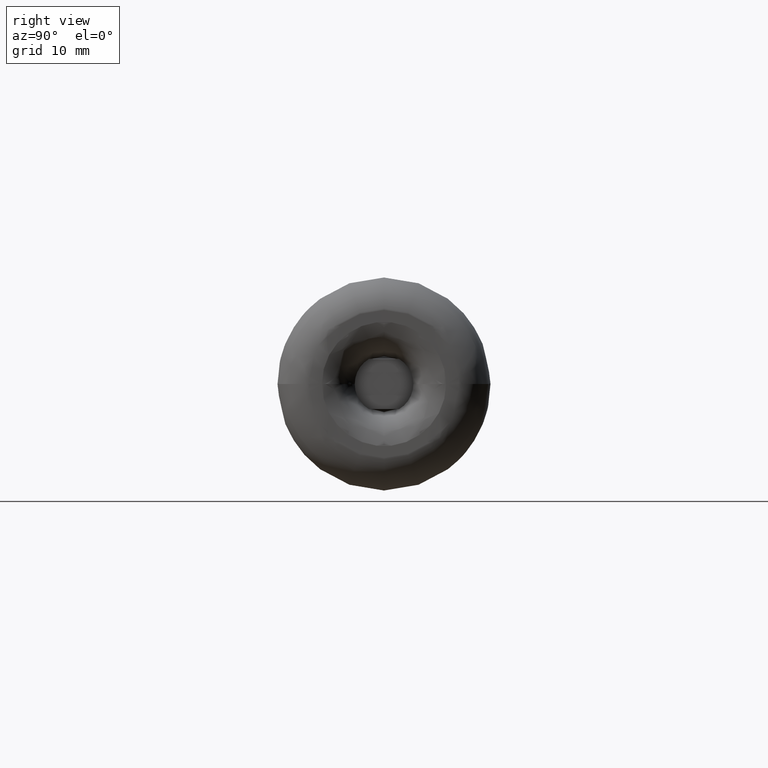
[diagram: clean part render]
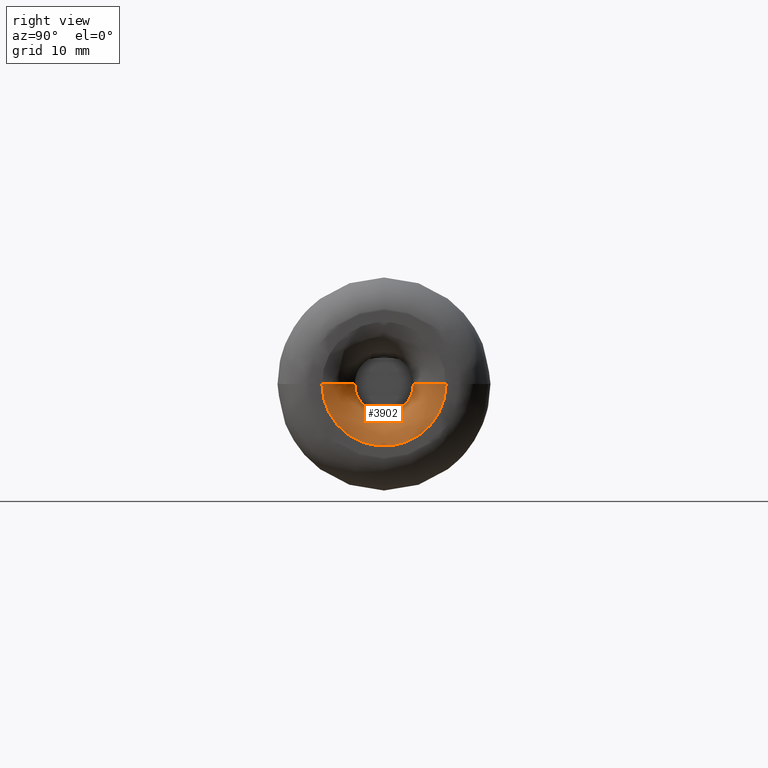
[diagram: same view with one face highlighted and labeled with its STEP entity id]
A machine part, right view. The second image highlights one B-rep face of the part: STEP entity #3902.
In plain terms, the highlighted face is a freeform B-spline surface patch.
Its self-contained STEP definition (entity closure, byte-faithful):
#5 = CARTESIAN_POINT ( 'NONE',  ( -2.640426819113545600, 4.414133946483703500, -1.081151001713788300E-015 ) ) ;
#15 = CARTESIAN_POINT ( 'NONE',  ( -10.40488679224094100, 4.644380604542021700, -7.478768693673288200 ) ) ;
#19 = CARTESIAN_POINT ( 'NONE',  ( -2.127237504182518000, -4.622466558201964800, 5.660888874667718900E-016 ) ) ;
#20 = CARTESIAN_POINT ( 'NONE',  ( -4.691000347751965700, -1.792159854703564600, -3.775000000000000400 ) ) ;
#34 = EDGE_CURVE ( 'NONE', #4147, #3347, #3425, .T. ) ;
#40 = CARTESIAN_POINT ( 'NONE',  ( -3.420076371923831600, -4.197126467063535300, -8.394252934127067100 ) ) ;
#45 = CARTESIAN_POINT ( 'NONE',  ( -9.905713998838956900, 6.290864643381166100, -3.820924958360208700 ) ) ;
#56 = CARTESIAN_POINT ( 'NONE',  ( -2.640426819113546000, -4.414133946483704400, -8.828267892967405200 ) ) ;
#57 = CARTESIAN_POINT ( 'NONE',  ( -5.346169572955799900, -1.802985755603556900, -3.774999999999998100 ) ) ;
#65 = CARTESIAN_POINT ( 'NONE',  ( -10.45801784823340500, 9.170396842208663900, -4.512204728046956600 ) ) ;
#75 = CARTESIAN_POINT ( 'NONE',  ( -2.127237504182518000, 4.622466558201964800, 0.0000000000000000000 ) ) ;
#77 = CARTESIAN_POINT ( 'NONE',  ( -1.959754673519538800, 4.703589338775177700, -9.407178677550360700 ) ) ;
#90 = CARTESIAN_POINT ( 'NONE',  ( 0.6221633841439894200, 7.223999124686213400, 0.0000000000000000000 ) ) ;
#91 = CARTESIAN_POINT ( 'NONE',  ( 0.3460376188296719300, -6.754272202541248900, -13.50854440508249300 ) ) ;
#98 = FACE_OUTER_BOUND ( 'NONE', #2097, .T. ) ;
#110 = CARTESIAN_POINT ( 'NONE',  ( -1.959754673519539000, 4.703589338775181300, -1.152047125646928200E-015 ) ) ;
#121 = CARTESIAN_POINT ( 'NONE',  ( 0.7830075989791592800, -7.553317183043511700, -15.10663436608701300 ) ) ;
#125 = CARTESIAN_POINT ( 'NONE',  ( -10.46657141291283300, -10.79328610452892400, -21.58657220905783800 ) ) ;
#135 = CARTESIAN_POINT ( 'NONE',  ( 0.9427221595547495800, 7.948819468979273500, -1.946899263937126200E-015 ) ) ;
#140 = CARTESIAN_POINT ( 'NONE',  ( -10.46770216873906100, -10.84820104870492400, -21.69640209740983700 ) ) ;
#152 = CARTESIAN_POINT ( 'NONE',  ( 1.198889992103140800, -8.977010667836681900, 1.099366738027783600E-015 ) ) ;
#157 = CARTESIAN_POINT ( 'NONE',  ( -10.45909922627591500, 10.29695359682395100, -20.59390719364791200 ) ) ;
#161 = CARTESIAN_POINT ( 'NONE',  ( -10.46535732515180500, -1.002155222392055300, -10.65161809484905400 ) ) ;
#172 = CARTESIAN_POINT ( 'NONE',  ( -10.43993518014393900, -1.005728071871388600, -8.975057944203463500 ) ) ;
#196 = DIRECTION ( 'NONE',  ( 0.0000000000000000000, 0.0000000000000000000, -1.000000000000000000 ) ) ;
#204 = CARTESIAN_POINT ( 'NONE',  ( -10.44790298736029600, -9.557518625295864800, -19.11503725059172300 ) ) ;
#216 = CARTESIAN_POINT ( 'NONE',  ( -10.43939912713916500, -9.015785404877195900, -18.03157080975438800 ) ) ;
#228 = CARTESIAN_POINT ( 'NONE',  ( -10.43657553708539100, -8.977920560013105300, -17.95584112002620400 ) ) ;
#229 = CARTESIAN_POINT ( 'NONE',  ( -2.700000000000002000, -2.248579094862729600, -3.775000000000000400 ) ) ;
#242 = CARTESIAN_POINT ( 'NONE',  ( -10.19741644272401800, -8.056548682802679600, 9.866426556569125900E-016 ) ) ;
#253 = DIRECTION ( 'NONE',  ( 1.000000000000000000, -0.0000000000000000000, -0.0000000000000000000 ) ) ;
#254 = CARTESIAN_POINT ( 'NONE',  ( -10.43657553708539100, 8.977920560013098200, -17.95584112002620700 ) ) ;
#271 = CARTESIAN_POINT ( 'NONE',  ( -9.269180882022634900, 6.316234557050790100, -12.63246911410158500 ) ) ;
#282 = CARTESIAN_POINT ( 'NONE',  ( -6.641070360272875600, 4.417298335939418200, -8.834596671878838200 ) ) ;
#286 = CARTESIAN_POINT ( 'NONE',  ( 1.207745694364613200, -9.186343016296707000, -18.37268603259341000 ) ) ;
#292 = CARTESIAN_POINT ( 'NONE',  ( -10.43856694901745300, 4.649114041888294600, -7.668120286993874000 ) ) ;
#301 = CARTESIAN_POINT ( 'NONE',  ( -7.607778385289454300, -4.899132861652510100, 5.999707377620359600E-016 ) ) ;
#303 = ORIENTED_EDGE ( 'NONE', *, *, #627, .F. ) ;
#310 = CARTESIAN_POINT ( 'NONE',  ( -5.113614513993829800, 1.794374369533090700, -3.775000000000001200 ) ) ;
#314 = CARTESIAN_POINT ( 'NONE',  ( -8.238141000228649700, 4.339864342344713900, -3.103938249528058500 ) ) ;
#318 = CARTESIAN_POINT ( 'NONE',  ( -10.01683698984662900, 7.603859679776395100, -15.20771935955279600 ) ) ;
#319 = CARTESIAN_POINT ( 'NONE',  ( -3.465747025710377700, -1.814016338996651300, -3.775000000000000400 ) ) ;
#322 = CARTESIAN_POINT ( 'NONE',  ( 1.214259526883061400, 9.316127081116398800, -2.281793042067834200E-015 ) ) ;
#326 = B_SPLINE_CURVE_WITH_KNOTS ( 'NONE', 3,
 ( #2493, #3164, #2458, #2845, #1050, #3468, #2535, #3939, #3261, #2523, #1139, #3195, #1189, #1887, #172, #1870, #3230, #1513 ),
 .UNSPECIFIED., .F., .F.,
 ( 4, 2, 2, 2, 2, 2, 2, 2, 4 ),
 ( 0.0006532297678760234700, 0.002298311645431134700, 0.003943393522986245400, 0.004765934461763799400, 0.005177204931152579900, 0.005382840165846969700, 0.005485657783194164600, 0.005588475400541359500, 0.007233557278096470200 ),
 .UNSPECIFIED. ) ;
#327 = CARTESIAN_POINT ( 'NONE',  ( -3.540020990737097400, 1.796942929644270700, -3.775000000000001200 ) ) ;
#332 = CARTESIAN_POINT ( 'NONE',  ( -7.107095317487520900, -2.080024711609695500, -4.128191749154675300 ) ) ;
#335 = CARTESIAN_POINT ( 'NONE',  ( -7.755178997416050100, -4.991814637084876200, -9.983629274169748800 ) ) ;
#341 = CARTESIAN_POINT ( 'NONE',  ( -3.957551803157687100, 1.790652482646819100, -3.775000000000000400 ) ) ;
#346 = CARTESIAN_POINT ( 'NONE',  ( -3.492502298036260600, 4.183335856784816000, -1.024621773353974800E-015 ) ) ;
#347 = CARTESIAN_POINT ( 'NONE',  ( -5.909434456039840600, -1.878418641818915500, -3.775000000000001700 ) ) ;
#353 = CARTESIAN_POINT ( 'NONE',  ( -2.700000000000002400, 2.248579094862726000, -3.775000000000000400 ) ) ;
#356 = CARTESIAN_POINT ( 'NONE',  ( -10.41359468805328900, 4.582420706333118200, -7.565882359514946000 ) ) ;
#358 = CARTESIAN_POINT ( 'NONE',  ( -3.492502298036260100, -4.183335856784816000, -8.366671713569628500 ) ) ;
#365 = CARTESIAN_POINT ( 'NONE',  ( -6.526640332921394000, 2.244592248457414600, -3.775000000000009700 ) ) ;
#369 = CARTESIAN_POINT ( 'NONE',  ( 0.4000532943659569900, 6.840540384663439600, 0.0000000000000000000 ) ) ;
#373 = CARTESIAN_POINT ( 'NONE',  ( -2.127237504182518000, 4.622466558201964800, -1.132177774933543800E-015 ) ) ;
#388 = CARTESIAN_POINT ( 'NONE',  ( -0.2254056028614419000, 6.004643113664426900, 0.0000000000000000000 ) ) ;
#391 = CARTESIAN_POINT ( 'NONE',  ( -3.158779460558483400, -4.255930186063593200, 5.212011279757379200E-016 ) ) ;
#396 = CARTESIAN_POINT ( 'NONE',  ( -10.21409690040089700, 6.981234301583592500, -4.079052799039318200 ) ) ;
#399 = DIRECTION ( 'NONE',  ( 1.000000000000000000, -0.0000000000000000000, -0.0000000000000000000 ) ) ;
#406 = CARTESIAN_POINT ( 'NONE',  ( -2.759031408750967100, -4.373763120483856100, -8.747526240967708600 ) ) ;
#411 = CARTESIAN_POINT ( 'NONE',  ( -8.238141000228649700, 4.339864342344713900, -3.103938249528058500 ) ) ;
#420 = CARTESIAN_POINT ( 'NONE',  ( 1.213862931367676500, 9.297199811028333400, 0.0000000000000000000 ) ) ;
#422 = CARTESIAN_POINT ( 'NONE',  ( 1.143036288997781400, -8.667631785654546000, -17.33526357130908100 ) ) ;
#424 = CARTESIAN_POINT ( 'NONE',  ( -10.44855845592084400, 8.513159151644627400, -4.424483666049331600 ) ) ;
#426 = CIRCLE ( 'NONE', #3194, 4.393942756324175700 ) ;
#431 = CARTESIAN_POINT ( 'NONE',  ( -2.423323413801607500, 4.496431151531159500, 0.0000000000000000000 ) ) ;
#435 = CARTESIAN_POINT ( 'NONE',  ( -0.2254056028614419000, 6.004643113664424300, -12.00928622732885200 ) ) ;
#445 = CARTESIAN_POINT ( 'NONE',  ( -0.6053728077346706100, -5.623356397781972000, -11.24671279556393900 ) ) ;
#450 = CIRCLE ( 'NONE', #3161, 10.85214884037490500 ) ;
#452 = CARTESIAN_POINT ( 'NONE',  ( 0.4000532943659569900, -6.840540384663439600, 8.377245886516286500E-016 ) ) ;
#458 = CARTESIAN_POINT ( 'NONE',  ( 0.9427221595547495800, -7.948819468979273500, 9.734496319685630800E-016 ) ) ;
#475 = CARTESIAN_POINT ( 'NONE',  ( 1.200813180576804500, 9.047203910227429100, -2.215925861978687600E-015 ) ) ;
#480 = CARTESIAN_POINT ( 'NONE',  ( -10.46452192734375900, 10.62625434151112600, -2.602681673251453500E-015 ) ) ;
#489 = CARTESIAN_POINT ( 'NONE',  ( 1.198889992103140800, 8.977010667836676600, -17.95402133567336400 ) ) ;
#538 = CARTESIAN_POINT ( 'NONE',  ( -10.28216493894962900, 8.319312948855424500, -2.037643994784184400E-015 ) ) ;
#551 = EDGE_CURVE ( 'NONE', #3294, #2165, #3483, .T. ) ;
#552 = CARTESIAN_POINT ( 'NONE',  ( -10.43153256090948500, 8.938579585361580400, -2.189320575627387100E-015 ) ) ;
#557 = B_SPLINE_CURVE_WITH_KNOTS ( 'NONE', 3,
 ( #3416, #3069, #1716, #4134, #431, #3822, #75, #2121, #1729, #3138, #4150, #3476, #388, #2064, #4199, #2404, #369, #2772, #2449, #90, #1091, #3118, #1434, #1057, #1401, #1074, #3851, #3498, #1778, #2468, #420, #2802 ),
 .UNSPECIFIED., .F., .F.,
 ( 4, 1, 1, 1, 1, 1, 1, 1, 1, 1, 1, 1, 1, 1, 1, 1, 1, 1, 1, 1, 1, 1, 1, 1, 1, 1, 1, 1, 1, 4 ),
 ( 0.8221511401234263800, 0.8231390885830919300, 0.8278196001545636800, 0.8295690324865546700, 0.8326993848811985500, 0.8398690311558988400, 0.8432922593847757000, 0.8476044841699893500, 0.8607946435288070800, 0.8724055067203452300, 0.8889676864410847000, 0.9007947910567158900, 0.9154881094182909500, 0.9220459075280063000, 0.9289488754758917800, 0.9297619362498467100, 0.9301987017980095600, 0.9334338947389148000, 0.9411659384947054200, 0.9498020727083815700, 0.9627753833127811200, 0.9752918286474421300, 0.9832466650971232200, 0.9890903396387414900, 0.9909680540756482500, 0.9927492157933938100, 0.9947101490446514900, 0.9963955352957240000, 0.9984838461825301700, 1.000000000000000000 ),
 .UNSPECIFIED. ) ;
#568 = CARTESIAN_POINT ( 'NONE',  ( -10.43657553708539100, 8.977920560013103600, -2.198956335363852200E-015 ) ) ;
#588 = CARTESIAN_POINT ( 'NONE',  ( -10.19741644272401800, -8.056548682802681300, -16.11309736560535200 ) ) ;
#602 = CARTESIAN_POINT ( 'NONE',  ( -10.32821189886791500, 8.478625324785037200, -16.95725064957008100 ) ) ;
#603 = EDGE_CURVE ( 'NONE', #4460, #1755, #2668, .T. ) ;
#614 = CARTESIAN_POINT ( 'NONE',  ( -9.929431051692972700, -7.418546427520646500, 9.085099136789191600E-016 ) ) ;
#624 = CARTESIAN_POINT ( 'NONE',  ( -10.44669779103710500, 4.650256757212570600, -8.250589818885059000 ) ) ;
#627 = EDGE_CURVE ( 'NONE', #3504, #3620, #4092, .T. ) ;
#629 = CARTESIAN_POINT ( 'NONE',  ( -6.098289895726646900, -4.261746041957714200, 5.219133649062417300E-016 ) ) ;
#631 = CARTESIAN_POINT ( 'NONE',  ( 1.213862931367676800, -9.297199811028335100, -18.59439962205666300 ) ) ;
#636 = CARTESIAN_POINT ( 'NONE',  ( -10.42210327005110800, 4.646800222704098500, -7.573386092679947400 ) ) ;
#643 = CARTESIAN_POINT ( 'NONE',  ( -5.841743712138792500, 4.200258366755965000, -1.028766592887916600E-015 ) ) ;
#650 = CARTESIAN_POINT ( 'NONE',  ( 1.212864583471646100, -9.252202123184559900, -18.50440424636911600 ) ) ;
#652 = B_SPLINE_CURVE_WITH_KNOTS ( 'NONE', 3,
 ( #2230, #2873, #1860, #161 ),
 .UNSPECIFIED., .F., .F.,
 ( 4, 4 ),
 ( 0.0002752865373452388500, 0.0006348848687680071300 ),
 .UNSPECIFIED. ) ;
#658 = CARTESIAN_POINT ( 'NONE',  ( -6.768736423692019800, -2.127577952972693300, -3.935086880228503100 ) ) ;
#661 = CARTESIAN_POINT ( 'NONE',  ( -5.683378885319909200, 4.174493538306298200, -1.022456029949623500E-015 ) ) ;
#662 = EDGE_CURVE ( 'NONE', #4254, #4306, #557, .T. ) ;
#671 = CARTESIAN_POINT ( 'NONE',  ( -3.730825172918738300, -4.172218216999517900, 5.109493684792737500E-016 ) ) ;
#682 = CARTESIAN_POINT ( 'NONE',  ( -3.572550656414095600, 1.794750131378667100, -3.775000000000001200 ) ) ;
#685 = CARTESIAN_POINT ( 'NONE',  ( -10.44110143839341000, 4.386700007801840300, -7.943020219674918900 ) ) ;
#688 = CARTESIAN_POINT ( 'NONE',  ( -4.999366588153932900, 4.177115332148836100, -1.023098184237080900E-015 ) ) ;
#695 = B_SPLINE_CURVE_WITH_KNOTS ( 'NONE', 3,
 ( #3624, #3708, #3339, #3657 ),
 .UNSPECIFIED., .F., .F.,
 ( 4, 4 ),
 ( 2.542790429196038800E-016, 0.001270520678332402900 ),
 .UNSPECIFIED. ) ;
#697 = CARTESIAN_POINT ( 'NONE',  ( -4.542726999958795800, -4.179456635847065700, 5.118358191265273700E-016 ) ) ;
#698 = CARTESIAN_POINT ( 'NONE',  ( -6.129939015793286900, -2.000472851205279800, -3.775000000000002100 ) ) ;
#712 = CARTESIAN_POINT ( 'NONE',  ( -3.420076371923831200, -4.197126467063534400, 5.139997493505996600E-016 ) ) ;
#718 = CARTESIAN_POINT ( 'NONE',  ( 0.4295732447323879500, -6.888120266314478700, 8.435514436284040000E-016 ) ) ;
#726 = CARTESIAN_POINT ( 'NONE',  ( -2.127237504182518000, -4.622466558201965700, -9.244933116403927900 ) ) ;
#727 = CARTESIAN_POINT ( 'NONE',  ( -4.199473500467917100, -1.796619847938324000, -3.774999999999998600 ) ) ;
#733 = CARTESIAN_POINT ( 'NONE',  ( -9.020616731579240300, 5.041177271704327700, -3.323331254324107600 ) ) ;
#744 = CARTESIAN_POINT ( 'NONE',  ( -1.413437179597657500, 5.007152119244847400, -1.226398563135417800E-015 ) ) ;
#754 = CARTESIAN_POINT ( 'NONE',  ( -0.6053728077346707300, -5.623356397781970300, 6.886625413008479700E-016 ) ) ;
#760 = CARTESIAN_POINT ( 'NONE',  ( -0.2254056028614419000, -6.004643113664428700, -12.00928622732885200 ) ) ;
#772 = CARTESIAN_POINT ( 'NONE',  ( 1.213862931367676500, -9.297199811028333400, 1.138578598960922600E-015 ) ) ;
#779 = CARTESIAN_POINT ( 'NONE',  ( 0.3460376188296719900, 6.754272202541248000, -1.654319566682416600E-015 ) ) ;
#789 = CARTESIAN_POINT ( 'NONE',  ( 0.5031784154902836400, -7.010001864122254600, 8.584776344914297900E-016 ) ) ;
#794 = CARTESIAN_POINT ( 'NONE',  ( 0.3460376188296719300, 6.754272202541243600, -13.50854440508249300 ) ) ;
#800 = CARTESIAN_POINT ( 'NONE',  ( -10.38644499640434300, 7.599257591343572900, -4.271073941389352600 ) ) ;
#810 = CARTESIAN_POINT ( 'NONE',  ( 0.2475833392444225000, 6.605644052192520400, -1.617916168964864200E-015 ) ) ;
#828 = CARTESIAN_POINT ( 'NONE',  ( 1.143036288997781400, 8.667631785654540600, -17.33526357130908800 ) ) ;
#839 = CARTESIAN_POINT ( 'NONE',  ( 1.183175732880131300, 8.859274548775445600, -17.71854909755090200 ) ) ;
#871 = CARTESIAN_POINT ( 'NONE',  ( -10.37455647776865500, -8.660477758837110700, 1.060602636644671100E-015 ) ) ;
#882 = CARTESIAN_POINT ( 'NONE',  ( -10.44048970541151900, -9.059689978831142900, -18.11937995766227900 ) ) ;
#898 = CARTESIAN_POINT ( 'NONE',  ( -10.44428699700545400, 9.309238570631396900, -18.61847714126280500 ) ) ;
#911 = CARTESIAN_POINT ( 'NONE',  ( -10.28216493894963100, -8.319312948855424500, -16.63862589771084500 ) ) ;
#923 = CARTESIAN_POINT ( 'NONE',  ( -10.14665360722311100, -7.916409220275037100, 9.694805212350418500E-016 ) ) ;
#924 = ORIENTED_EDGE ( 'NONE', *, *, #1669, .F. ) ;
#936 = CARTESIAN_POINT ( 'NONE',  ( -7.189793631074258500, -4.659495925727660500, -9.318991851455319200 ) ) ;
#939 = CARTESIAN_POINT ( 'NONE',  ( 1.212864583471646100, -9.252202123184559900, 1.133067971522231400E-015 ) ) ;
#945 = EDGE_CURVE ( 'NONE', #3048, #2165, #4236, .T. ) ;
#949 = CARTESIAN_POINT ( 'NONE',  ( -10.08489517362965600, 7.762164810688042300, -15.52432962137609000 ) ) ;
#954 = CARTESIAN_POINT ( 'NONE',  ( -10.46243529771812100, 4.652468519537656300, -9.415612127458702600 ) ) ;
#958 = CARTESIAN_POINT ( 'NONE',  ( -8.045517948608653200, -1.948138011728315600, -4.797777108058030000 ) ) ;
#963 = CARTESIAN_POINT ( 'NONE',  ( -6.098289895726647800, -4.261746041957715100, -8.523492083915426700 ) ) ;
#979 = CARTESIAN_POINT ( 'NONE',  ( -5.683378885319909200, 4.174493538306296400, -8.348987076612596400 ) ) ;
#987 = CARTESIAN_POINT ( 'NONE',  ( -5.659332098253675400, 1.790553763412122000, -3.775000000000000800 ) ) ;
#990 = CARTESIAN_POINT ( 'NONE',  ( -6.415717789231830900, -2.177191486525225500, -3.775000000000001200 ) ) ;
#993 = CARTESIAN_POINT ( 'NONE',  ( -5.462039553736607500, 4.183773431696098800, -8.367546863392201200 ) ) ;
#997 = CARTESIAN_POINT ( 'NONE',  ( -8.920473570097026800, 4.435759931258644400, -3.984148236078172400 ) ) ;
#1005 = CARTESIAN_POINT ( 'NONE',  ( -3.730825172918738300, 4.172218216999517900, -1.021898736958547500E-015 ) ) ;
#1013 = CARTESIAN_POINT ( 'NONE',  ( -5.870183994602510500, 1.857685163745904600, -3.774999999999996400 ) ) ;
#1019 = CARTESIAN_POINT ( 'NONE',  ( -3.730825172918738700, -4.172218216999518800, -8.344436433999035800 ) ) ;
#1026 = CARTESIAN_POINT ( 'NONE',  ( -4.342888459931810300, 1.794717515151116800, -3.775000000000001700 ) ) ;
#1032 = CARTESIAN_POINT ( 'NONE',  ( -2.283906067081367600, -4.552949677144923200, 5.575755248794505100E-016 ) ) ;
#1044 = CARTESIAN_POINT ( 'NONE',  ( -2.852478777604803300, 4.343702390680327600, -1.063900245839073800E-015 ) ) ;
#1045 = CARTESIAN_POINT ( 'NONE',  ( -3.953734189430719900, -1.790122459632911500, -3.774999999999998600 ) ) ;
#1050 = CARTESIAN_POINT ( 'NONE',  ( -9.742085183329480800, -1.103804492920754000, -6.935460250888131600 ) ) ;
#1052 = CARTESIAN_POINT ( 'NONE',  ( -2.700000000000002000, 0.0000000000000000000, 0.0000000000000000000 ) ) ;
#1057 = CARTESIAN_POINT ( 'NONE',  ( 1.143036288997781400, 8.667631785654544200, 0.0000000000000000000 ) ) ;
#1060 = CARTESIAN_POINT ( 'NONE',  ( -3.158779460558483400, 4.255930186063591400, -8.511860372127186400 ) ) ;
#1061 = CARTESIAN_POINT ( 'NONE',  ( -5.592233877795686100, -1.791440963116050600, -3.774999999999998600 ) ) ;
#1069 = CARTESIAN_POINT ( 'NONE',  ( 0.9427221595547495800, -7.948819468979273500, 9.734496319685630800E-016 ) ) ;
#1073 = CARTESIAN_POINT ( 'NONE',  ( -10.44278063167716800, 4.649706236366461600, -7.959332050426787000 ) ) ;
#1074 = CARTESIAN_POINT ( 'NONE',  ( 1.198889992103140800, 8.977010667836681900, 0.0000000000000000000 ) ) ;
#1076 = CARTESIAN_POINT ( 'NONE',  ( -1.727441186406484900, -4.823132980118720600, 5.906634365964425500E-016 ) ) ;
#1082 = CARTESIAN_POINT ( 'NONE',  ( -10.46778924519497700, 9.827095930021664900, -4.604054738575722900 ) ) ;
#1087 = CARTESIAN_POINT ( 'NONE',  ( 1.201911471723392100, -9.114964994938281600, 1.116261270539133700E-015 ) ) ;
#1091 = CARTESIAN_POINT ( 'NONE',  ( 0.7830075989791592800, 7.553317183043510000, 0.0000000000000000000 ) ) ;
#1092 = CARTESIAN_POINT ( 'NONE',  ( -1.413437179597657500, -5.007152119244847400, 6.131992815677089100E-016 ) ) ;
#1099 = CARTESIAN_POINT ( 'NONE',  ( -2.688332243504462800, -4.397942283055553700, 5.385925939778787100E-016 ) ) ;
#1105 = CARTESIAN_POINT ( 'NONE',  ( 0.4000532943659569900, 6.840540384663439600, -1.675449177303257300E-015 ) ) ;
#1111 = CARTESIAN_POINT ( 'NONE',  ( -10.41397901028562400, 7.726719935300961200, -4.306567516445148200 ) ) ;
#1120 = CARTESIAN_POINT ( 'NONE',  ( 0.4000532943659569900, -6.840540384663442300, -13.68108076932687600 ) ) ;
#1134 = CARTESIAN_POINT ( 'NONE',  ( -2.700000000000002400, 2.248579094862726000, -3.775000000000000400 ) ) ;
#1135 = CARTESIAN_POINT ( 'NONE',  ( 0.3460376188296719900, -6.754272202541248000, 8.271597833412082900E-016 ) ) ;
#1139 = CARTESIAN_POINT ( 'NONE',  ( -10.40388516547548500, -1.010794571023926300, -8.739151483620627700 ) ) ;
#1150 = CARTESIAN_POINT ( 'NONE',  ( 1.198889992103140800, 8.977010667836681900, -2.198733476055567200E-015 ) ) ;
#1167 = CARTESIAN_POINT ( 'NONE',  ( 1.200813180576804500, 9.047203910227422000, -18.09440782045485500 ) ) ;
#1176 = CARTESIAN_POINT ( 'NONE',  ( -10.45382587538868300, -9.940656012833287000, -19.88131202566656700 ) ) ;
#1189 = CARTESIAN_POINT ( 'NONE',  ( -10.43067205873790300, -1.007029918685741900, -8.873267348201698800 ) ) ;
#1201 = CARTESIAN_POINT ( 'NONE',  ( -10.37455647776865500, 8.660477758837110700, -2.121205273289342200E-015 ) ) ;
#1217 = CARTESIAN_POINT ( 'NONE',  ( -10.45382587538868300, 9.940656012833279900, -19.88131202566657100 ) ) ;
#1223 = VERTEX_POINT ( 'NONE', #3269 ) ;
#1228 = ORIENTED_EDGE ( 'NONE', *, *, #1416, .F. ) ;
#1233 = CARTESIAN_POINT ( 'NONE',  ( -10.40891471598699000, 8.821498339230998900, -2.160643940964587200E-015 ) ) ;
#1244 = CARTESIAN_POINT ( 'NONE',  ( -10.43153256090948300, -8.938579585361582100, -17.87715917072315700 ) ) ;
#1258 = CARTESIAN_POINT ( 'NONE',  ( -10.08489517362965600, -7.762164810688047600, -15.52432962137608500 ) ) ;
#1263 = CARTESIAN_POINT ( 'NONE',  ( -2.700000000000002000, 4.393942756324175700, 0.0000000000000000000 ) ) ;
#1272 = CARTESIAN_POINT ( 'NONE',  ( -9.707900237447812900, 6.986779034843817900, -13.97355806968763900 ) ) ;
#1282 = ORIENTED_EDGE ( 'NONE', *, *, #2479, .T. ) ;
#1285 = CARTESIAN_POINT ( 'NONE',  ( -8.628936383497436000, -5.642501300348286900, -11.28500260069656800 ) ) ;
#1286 = CARTESIAN_POINT ( 'NONE',  ( -3.178719604036890400, -1.956755574260762300, -3.775000000000000400 ) ) ;
#1288 = CARTESIAN_POINT ( 'NONE',  ( 1.213862931367676500, 9.297199811028333400, -2.277157197921845200E-015 ) ) ;
#1301 = CARTESIAN_POINT ( 'NONE',  ( -7.607778385289454300, -4.899132861652510900, -9.798265723305020100 ) ) ;
#1315 = CARTESIAN_POINT ( 'NONE',  ( -8.628936383497436000, -5.642501300348286000, 6.910071156656305600E-016 ) ) ;
#1323 = CARTESIAN_POINT ( 'NONE',  ( -4.985173543195442000, 1.792283308368561400, -3.775000000000001200 ) ) ;
#1329 = CARTESIAN_POINT ( 'NONE',  ( -10.46488212565453500, 4.217491625686544200, -9.790597358720820200 ) ) ;
#1333 = CARTESIAN_POINT ( 'NONE',  ( -4.999366588153932900, -4.177115332148836100, 5.115490921185404600E-016 ) ) ;
#1345 = CARTESIAN_POINT ( 'NONE',  ( -4.542726999958795800, 4.179456635847065700, -1.023671638253054700E-015 ) ) ;
#1351 = CARTESIAN_POINT ( 'NONE',  ( -5.370502695566326400, 1.798902595273359900, -3.774999999999999900 ) ) ;
#1360 = CARTESIAN_POINT ( 'NONE',  ( -3.324388323890932200, 4.217538073349365000, -8.435076146698733600 ) ) ;
#1373 = CARTESIAN_POINT ( 'NONE',  ( -2.991709122208876100, 4.301511475767980200, -8.603022951535962200 ) ) ;
#1386 = VERTEX_POINT ( 'NONE', #3588 ) ;
#1389 = CARTESIAN_POINT ( 'NONE',  ( -3.492502298036260600, -4.183335856784816000, 5.123108866769874100E-016 ) ) ;
#1401 = CARTESIAN_POINT ( 'NONE',  ( 1.183175732880131300, 8.859274548775451000, 0.0000000000000000000 ) ) ;
#1403 = CARTESIAN_POINT ( 'NONE',  ( -4.022538620185291500, 4.180695358199508300, -8.361390716399022000 ) ) ;
#1404 = CARTESIAN_POINT ( 'NONE',  ( -5.182506467898735800, -1.794717377155501600, -3.774999999999999500 ) ) ;
#1411 = CARTESIAN_POINT ( 'NONE',  ( 1.067691677152198900, -8.347794687164716600, 1.022310004357555100E-015 ) ) ;
#1416 = EDGE_CURVE ( 'NONE', #3620, #4147, #695, .T. ) ;
#1418 = CARTESIAN_POINT ( 'NONE',  ( 0.5031784154902835300, 7.010001864122251000, -14.02000372824450700 ) ) ;
#1430 = CARTESIAN_POINT ( 'NONE',  ( -0.9892507430662947900, -5.302322506152740400, 6.493472285206925300E-016 ) ) ;
#1434 = CARTESIAN_POINT ( 'NONE',  ( 1.067691677152198900, 8.347794687164716600, 0.0000000000000000000 ) ) ;
#1438 = CARTESIAN_POINT ( 'NONE',  ( -0.2254056028614419000, 6.004643113664426900, -1.470713393834267500E-015 ) ) ;
#1445 = CARTESIAN_POINT ( 'NONE',  ( 1.214259526883061200, -9.316127081116398800, 1.548743713928114500E-015 ) ) ;
#1450 = CARTESIAN_POINT ( 'NONE',  ( 0.7830075989791592800, 7.553317183043506400, -15.10663436608701800 ) ) ;
#1464 = CARTESIAN_POINT ( 'NONE',  ( 0.4295732447323879500, 6.888120266314478700, -1.687102887256808000E-015 ) ) ;
#1477 = CARTESIAN_POINT ( 'NONE',  ( 0.9427221595547496900, -7.948819468979274400, -15.89763893795854200 ) ) ;
#1484 = CARTESIAN_POINT ( 'NONE',  ( -10.46770216873905900, -10.84820104870492100, 1.328521469080344300E-015 ) ) ;
#1495 = CARTESIAN_POINT ( 'NONE',  ( 1.201911471723392100, -9.114964994938281600, 1.116261270539133700E-015 ) ) ;
#1513 = CARTESIAN_POINT ( 'NONE',  ( -10.46535732515180500, -1.002155222392055300, -10.65161809484905400 ) ) ;
#1516 = ORIENTED_EDGE ( 'NONE', *, *, #2623, .T. ) ;
#1531 = EDGE_CURVE ( 'NONE', #1755, #4313, #3565, .T. ) ;
#1535 = CIRCLE ( 'NONE', #1863, 10.85214884037490500 ) ;
#1547 = CARTESIAN_POINT ( 'NONE',  ( -10.42468919442286300, 8.900329887197994300, -17.80065977439599900 ) ) ;
#1558 = CARTESIAN_POINT ( 'NONE',  ( -10.44113095208974300, 9.118054857161947500, -18.23610971432390600 ) ) ;
#1571 = CARTESIAN_POINT ( 'NONE',  ( -10.43939912713916500, 9.015785404877194200, -2.208230547576455900E-015 ) ) ;
#1579 = CARTESIAN_POINT ( 'NONE',  ( -10.44048970541151900, 9.059689978831137600, -18.11937995766228600 ) ) ;
#1594 = CARTESIAN_POINT ( 'NONE',  ( -10.40891471598699000, 8.821498339230995400, -17.64299667846199800 ) ) ;
#1608 = CARTESIAN_POINT ( 'NONE',  ( -9.269180882022633100, -6.316234557050791800, 7.735156432956153200E-016 ) ) ;
#1629 = CARTESIAN_POINT ( 'NONE',  ( -7.189793631074258500, -4.659495925727659600, 5.706236771082512000E-016 ) ) ;
#1640 = CARTESIAN_POINT ( 'NONE',  ( -10.46572338670501900, 4.211505742279373800, -9.900068222700209500 ) ) ;
#1643 = CARTESIAN_POINT ( 'NONE',  ( -5.841743712138791600, -4.200258366755965900, -8.400516733511928200 ) ) ;
#1655 = CARTESIAN_POINT ( 'NONE',  ( -10.43462143299727900, 4.432807641997417400, -7.786935508161824300 ) ) ;
#1658 = CARTESIAN_POINT ( 'NONE',  ( -7.881777295244892100, -5.074760417958296800, 6.214789102292312400E-016 ) ) ;
#1661 = CARTESIAN_POINT ( 'NONE',  ( 1.214259526883061400, 9.316127081116393400, -18.63225416223279800 ) ) ;
#1664 = CARTESIAN_POINT ( 'NONE',  ( -3.829079248301010100, 1.785037760899471900, -3.775000000000000400 ) ) ;
#1667 = CARTESIAN_POINT ( 'NONE',  ( -10.44121580208446300, 4.385886267857110000, -7.997800167055753900 ) ) ;
#1669 = EDGE_CURVE ( 'NONE', #4313, #1386, #450, .T. ) ;
#1672 = CARTESIAN_POINT ( 'NONE',  ( -4.999366588153932000, -4.177115332148836100, -8.354230664297668700 ) ) ;
#1686 = CARTESIAN_POINT ( 'NONE',  ( -10.46778924519497000, 4.196806395329187600, -10.00779448898570200 ) ) ;
#1689 = CARTESIAN_POINT ( 'NONE',  ( -4.022538620185291500, -4.180695358199511000, -8.361390716399020200 ) ) ;
#1697 = CARTESIAN_POINT ( 'NONE',  ( -3.478227618264427600, 1.809198615461872400, -3.775000000000000400 ) ) ;
#1703 = CARTESIAN_POINT ( 'NONE',  ( -2.534521527518157400, 4.453060208139138600, -8.906120416278280800 ) ) ;
#1716 = CARTESIAN_POINT ( 'NONE',  ( -2.621460739178648000, 4.421105067369186500, 0.0000000000000000000 ) ) ;
#1719 = CARTESIAN_POINT ( 'NONE',  ( -4.022538620185291500, -4.180695358199511000, 5.119875188629227900E-016 ) ) ;
#1726 = CARTESIAN_POINT ( 'NONE',  ( -6.731505045175886400, 2.389779342352025700, -3.774999999999997200 ) ) ;
#1729 = CARTESIAN_POINT ( 'NONE',  ( -1.727441186406484900, 4.823132980118720600, 0.0000000000000000000 ) ) ;
#1733 = CARTESIAN_POINT ( 'NONE',  ( -2.283906067081367100, -4.552949677144924000, -9.105899354289844500 ) ) ;
#1739 = CARTESIAN_POINT ( 'NONE',  ( -9.645014084904948600, 5.853888303155256000, -3.646761628772192200 ) ) ;
#1749 = CARTESIAN_POINT ( 'NONE',  ( -2.852478777604803300, -4.343702390680327600, 5.319501229195369100E-016 ) ) ;
#1755 = VERTEX_POINT ( 'NONE', #2565 ) ;
#1757 = CARTESIAN_POINT ( 'NONE',  ( -2.621460739178648000, -4.421105067369186500, 5.414292169447817900E-016 ) ) ;
#1762 = CARTESIAN_POINT ( 'NONE',  ( -10.45698380522158800, 4.651702362231819900, -9.027300163659763400 ) ) ;
#1763 = CARTESIAN_POINT ( 'NONE',  ( 1.067691677152198900, -8.347794687164718400, -16.69558937432942600 ) ) ;
#1769 = CARTESIAN_POINT ( 'NONE',  ( -10.45999719818974100, 9.301772578261863000, -4.530248800687744800 ) ) ;
#1775 = CARTESIAN_POINT ( 'NONE',  ( -1.413437179597657500, -5.007152119244847400, 6.131992815677089100E-016 ) ) ;
#1778 = CARTESIAN_POINT ( 'NONE',  ( 1.207745694364613200, 9.186343016296707000, 0.0000000000000000000 ) ) ;
#1779 = ORIENTED_EDGE ( 'NONE', *, *, #1531, .F. ) ;
#1780 = CARTESIAN_POINT ( 'NONE',  ( -7.914077803335177700, -1.360714175947282300, -4.912502140504164700 ) ) ;
#1781 = CARTESIAN_POINT ( 'NONE',  ( 0.04065178157608168700, -6.321430785680842500, 7.741519977715581700E-016 ) ) ;
#1792 = CARTESIAN_POINT ( 'NONE',  ( 1.212864583471646100, -9.252202123184559900, 1.133067971522231400E-015 ) ) ;
#1799 = CARTESIAN_POINT ( 'NONE',  ( 1.067691677152198900, 8.347794687164716600, -2.044620008715110100E-015 ) ) ;
#1805 = CARTESIAN_POINT ( 'NONE',  ( -10.45230900041763500, 8.776137832182909500, -4.458978050991947700 ) ) ;
#1811 = CARTESIAN_POINT ( 'NONE',  ( 0.6221633841439894200, -7.223999124686213400, 8.846847405090252600E-016 ) ) ;
#1819 = CARTESIAN_POINT ( 'NONE',  ( 0.6221633841439894200, 7.223999124686213400, -1.769369481018050500E-015 ) ) ;
#1824 = CARTESIAN_POINT ( 'NONE',  ( -10.46778924519497200, 10.85214884037490400, -21.70429768074981800 ) ) ;
#1830 = CARTESIAN_POINT ( 'NONE',  ( 1.214259526883061200, 0.0000000000000000000, 0.0000000000000000000 ) ) ;
#1834 = CARTESIAN_POINT ( 'NONE',  ( 0.9427221595547496900, 7.948819468979269100, -15.89763893795854700 ) ) ;
#1845 = DIRECTION ( 'NONE',  ( 0.0000000000000000000, 1.000000000000000000, 0.0000000000000000000 ) ) ;
#1848 = CARTESIAN_POINT ( 'NONE',  ( 1.183175732880131300, 8.859274548775451000, -2.169896443785093700E-015 ) ) ;
#1855 = CARTESIAN_POINT ( 'NONE',  ( -10.46657141291283300, 10.79328610452892100, -2.643592656038589800E-015 ) ) ;
#1860 = CARTESIAN_POINT ( 'NONE',  ( -10.46604609416516900, -1.114933785536051000, -10.69249046663271800 ) ) ;
#1863 = AXIS2_PLACEMENT_3D ( 'NONE', #2656, #253, #2959 ) ;
#1870 = CARTESIAN_POINT ( 'NONE',  ( -10.44924723062469200, -1.004419348524033400, -9.556671745400217700 ) ) ;
#1881 = ORIENTED_EDGE ( 'NONE', *, *, #3304, .T. ) ;
#1887 = CARTESIAN_POINT ( 'NONE',  ( -10.43854972305600100, -1.005922785166970800, -8.940938497817310100 ) ) ;
#1901 = CARTESIAN_POINT ( 'NONE',  ( -10.40891471598699000, -8.821498339231000700, -17.64299667846199800 ) ) ;
#1914 = CARTESIAN_POINT ( 'NONE',  ( -10.44790298736029600, 9.557518625295857700, -19.11503725059172600 ) ) ;
#1928 = CARTESIAN_POINT ( 'NONE',  ( -10.40891471598699000, -8.821498339230998900, 1.080321970482293600E-015 ) ) ;
#1940 = CARTESIAN_POINT ( 'NONE',  ( -10.24454933301748800, 8.197566800724752400, -16.39513360144951500 ) ) ;
#1952 = CARTESIAN_POINT ( 'NONE',  ( -10.08489517362965600, -7.762164810688045000, 9.505910289863336000E-016 ) ) ;
#1967 = CARTESIAN_POINT ( 'NONE',  ( -9.707900237447812900, 6.986779034843820600, -1.711267316274263800E-015 ) ) ;
#1987 = CARTESIAN_POINT ( 'NONE',  ( -7.189793631074258500, 4.659495925727659600, -1.141247354216502400E-015 ) ) ;
#1996 = CARTESIAN_POINT ( 'NONE',  ( -10.45601625552612100, 4.280575569560859600, -9.138845316470952400 ) ) ;
#1999 = CARTESIAN_POINT ( 'NONE',  ( -10.01683698984662900, -7.603859679776398700, 9.312042418003784400E-016 ) ) ;
#2014 = CARTESIAN_POINT ( 'NONE',  ( -7.755178997416050100, 4.991814637084872600, -9.983629274169750500 ) ) ;
#2015 = CARTESIAN_POINT ( 'NONE',  ( -3.625428534067219200, -1.788403767432312100, -3.775000000000000800 ) ) ;
#2022 = CARTESIAN_POINT ( 'NONE',  ( -4.728268116426970200, 1.791874277956856200, -3.775000000000001200 ) ) ;
#2027 = CARTESIAN_POINT ( 'NONE',  ( -10.42229324504475200, 4.520527257287636900, -7.653038613412154400 ) ) ;
#2030 = CARTESIAN_POINT ( 'NONE',  ( -9.929431051692970900, -7.418546427520647400, -14.83709285504128800 ) ) ;
#2043 = CARTESIAN_POINT ( 'NONE',  ( -3.420076371923831200, 4.197126467063534400, -1.027999498701199300E-015 ) ) ;
#2045 = CARTESIAN_POINT ( 'NONE',  ( -3.449857526912607100, 1.821150255040115700, -3.775000000000000400 ) ) ;
#2050 = CARTESIAN_POINT ( 'NONE',  ( -2.423323413801607500, -4.496431151531159500, 5.506540017309082000E-016 ) ) ;
#2051 = CARTESIAN_POINT ( 'NONE',  ( -4.363316484128662700, -1.794524787575273200, -3.775000000000001700 ) ) ;
#2064 = CARTESIAN_POINT ( 'NONE',  ( 0.04065178157608168700, 6.321430785680842500, 0.0000000000000000000 ) ) ;
#2067 = CARTESIAN_POINT ( 'NONE',  ( -2.759031408750967500, -4.373763120483855200, 5.356315005729291800E-016 ) ) ;
#2071 = CARTESIAN_POINT ( 'NONE',  ( -5.926425612670123600, 1.887835606344079100, -3.775000000000000400 ) ) ;
#2077 = CARTESIAN_POINT ( 'NONE',  ( -2.423323413801607500, -4.496431151531160400, -8.992862303062317200 ) ) ;
#2094 = CARTESIAN_POINT ( 'NONE',  ( -3.324388323890932600, 4.217538073349366800, -1.032998900361879500E-015 ) ) ;
#2096 = CARTESIAN_POINT ( 'NONE',  ( -10.44238691912622000, 7.920817225046617300, -4.351065573893819800 ) ) ;
#2097 = EDGE_LOOP ( 'NONE', ( #2386, #1282, #1516, #4119, #2562, #4264, #1228, #303, #4253, #924, #1779, #4094, #2899, #2298, #2319, #1881, #3077, #3704 ) ) ;
#2105 = CARTESIAN_POINT ( 'NONE',  ( -0.9892507430662949000, 5.302322506152738600, -10.60464501230548300 ) ) ;
#2113 = CARTESIAN_POINT ( 'NONE',  ( -10.46399115260724800, 9.564449961350597100, -4.566862356803246900 ) ) ;
#2121 = CARTESIAN_POINT ( 'NONE',  ( -1.959754673519539000, 4.703589338775181300, 0.0000000000000000000 ) ) ;
#2122 = CARTESIAN_POINT ( 'NONE',  ( -8.327680263550636400, -1.908482684464810000, -5.059513097528005200 ) ) ;
#2124 = CARTESIAN_POINT ( 'NONE',  ( 0.5031784154902836400, -7.010001864122254600, 8.584776344914297900E-016 ) ) ;
#2136 = CARTESIAN_POINT ( 'NONE',  ( -2.127237504182518000, -4.622466558201964800, 5.660888874667718900E-016 ) ) ;
#2143 = CARTESIAN_POINT ( 'NONE',  ( 0.4295732447323878400, 6.888120266314475200, -13.77624053262895600 ) ) ;
#2150 = CARTESIAN_POINT ( 'NONE',  ( -9.497760155891764800, 5.642267593794947800, -3.560691363552273000 ) ) ;
#2154 = CARTESIAN_POINT ( 'NONE',  ( -1.727441186406484900, -4.823132980118720600, 5.906634365964425500E-016 ) ) ;
#2160 = CARTESIAN_POINT ( 'NONE',  ( 0.7830075989791592800, -7.553317183043510000, 9.250145711158938300E-016 ) ) ;
#2163 = CARTESIAN_POINT ( 'NONE',  ( -10.46657141291283300, -10.79328610452892100, 1.321796328019294900E-015 ) ) ;
#2165 = VERTEX_POINT ( 'NONE', #2902 ) ;
#2178 = CARTESIAN_POINT ( 'NONE',  ( 0.4295732447323878400, -6.888120266314480500, -13.77624053262895400 ) ) ;
#2182 = CARTESIAN_POINT ( 'NONE',  ( -10.45909922627591400, -10.29695359682395600, 1.261013126331928300E-015 ) ) ;
#2191 = CARTESIAN_POINT ( 'NONE',  ( 1.200813180576804500, -9.047203910227430900, -18.09440782045485100 ) ) ;
#2225 = CARTESIAN_POINT ( 'NONE',  ( -10.46778924519497200, 10.85214884037490700, -2.658009868247158600E-015 ) ) ;
#2230 = CARTESIAN_POINT ( 'NONE',  ( -10.46778924519497000, -1.342213615835592600, -10.76882524062471100 ) ) ;
#2239 = CARTESIAN_POINT ( 'NONE',  ( -10.43153256090948300, 8.938579585361575000, -17.87715917072316100 ) ) ;
#2252 = CARTESIAN_POINT ( 'NONE',  ( -10.44428699700545400, -9.309238570631404000, -18.61847714126280100 ) ) ;
#2264 = CARTESIAN_POINT ( 'NONE',  ( -10.32821189886791500, 8.478625324785040700, -2.076664273033537900E-015 ) ) ;
#2279 = CARTESIAN_POINT ( 'NONE',  ( -10.32821189886791500, -8.478625324785042500, -16.95725064957007800 ) ) ;
#2282 = CARTESIAN_POINT ( 'NONE',  ( -8.238141000228649700, 4.339864342344713900, -3.103938249528058500 ) ) ;
#2293 = CARTESIAN_POINT ( 'NONE',  ( -10.44790298736029600, -9.557518625295863000, 1.170458459225978900E-015 ) ) ;
#2298 = ORIENTED_EDGE ( 'NONE', *, *, #3101, .T. ) ;
#2300 = CARTESIAN_POINT ( 'NONE',  ( 1.214259526883061400, 9.316127081116398800, 0.0000000000000000000 ) ) ;
#2310 = CARTESIAN_POINT ( 'NONE',  ( -8.118782220190148300, 5.237934290233046600, -10.47586858046609800 ) ) ;
#2315 = CARTESIAN_POINT ( 'NONE',  ( -10.46391214973739500, 4.652676077553177700, -9.609599311945661500 ) ) ;
#2319 = ORIENTED_EDGE ( 'NONE', *, *, #3803, .F. ) ;
#2323 = CARTESIAN_POINT ( 'NONE',  ( -9.929431051692972700, 7.418546427520646500, -1.817019827357838300E-015 ) ) ;
#2326 = CARTESIAN_POINT ( 'NONE',  ( 1.207745694364613200, -9.186343016296707000, 1.125002557077740400E-015 ) ) ;
#2334 = CARTESIAN_POINT ( 'NONE',  ( -8.118782220190148300, -5.237934290233050100, 6.414619462678067800E-016 ) ) ;
#2335 = CARTESIAN_POINT ( 'NONE',  ( -3.249564574154011800, -1.919256109244159600, -3.775000000000000400 ) ) ;
#2349 = CARTESIAN_POINT ( 'NONE',  ( -8.628936383497436000, 5.642501300348286000, -1.382014231331261100E-015 ) ) ;
#2352 = CARTESIAN_POINT ( 'NONE',  ( 1.207745694364613200, 9.186343016296701700, -18.37268603259341400 ) ) ;
#2355 = CARTESIAN_POINT ( 'NONE',  ( -7.690092061784839400, 3.187610024273242400, -3.775000000000001200 ) ) ;
#2358 = EDGE_CURVE ( 'NONE', #4366, #4460, #1535, .T. ) ;
#2360 = CARTESIAN_POINT ( 'NONE',  ( -7.881777295244892100, 5.074760417958296800, -1.242957820458462500E-015 ) ) ;
#2370 = CARTESIAN_POINT ( 'NONE',  ( -10.46042402495409400, 4.249212660429790800, -9.464738278101227900 ) ) ;
#2374 = CARTESIAN_POINT ( 'NONE',  ( -3.158779460558483400, 4.255930186063593200, -1.042402255951475800E-015 ) ) ;
#2375 = CARTESIAN_POINT ( 'NONE',  ( -5.835399481807791700, -1.836990975356874100, -3.775000000000000400 ) ) ;
#2383 = CARTESIAN_POINT ( 'NONE',  ( -3.366352092687040300, 1.860704326699435200, -3.774999999999992400 ) ) ;
#2386 = ORIENTED_EDGE ( 'NONE', *, *, #2538, .F. ) ;
#2389 = CARTESIAN_POINT ( 'NONE',  ( -2.852478777604803300, 4.343702390680326700, -8.687404781360657000 ) ) ;
#2398 = CARTESIAN_POINT ( 'NONE',  ( -3.393986421532999100, 1.847056755867084700, -3.774999999999999500 ) ) ;
#2404 = CARTESIAN_POINT ( 'NONE',  ( 0.3460376188296719900, 6.754272202541248000, 0.0000000000000000000 ) ) ;
#2407 = CARTESIAN_POINT ( 'NONE',  ( -2.127237504182518000, 4.622466558201962200, -9.244933116403929700 ) ) ;
#2409 = CARTESIAN_POINT ( 'NONE',  ( -3.708013319826876800, -1.787200508274325600, -3.775000000000000400 ) ) ;
#2421 = CARTESIAN_POINT ( 'NONE',  ( -3.420076371923831600, 4.197126467063532700, -8.394252934127068900 ) ) ;
#2427 = CARTESIAN_POINT ( 'NONE',  ( -10.01932391603864600, 6.515909935582332200, -3.908832696631845400 ) ) ;
#2430 = CARTESIAN_POINT ( 'NONE',  ( -0.2254056028614419000, -6.004643113664426900, 7.353566969171337400E-016 ) ) ;
#2437 = CARTESIAN_POINT ( 'NONE',  ( -2.534521527518157400, -4.453060208139141300, -8.906120416278279000 ) ) ;
#2441 = CARTESIAN_POINT ( 'NONE',  ( -10.44085739310580900, 7.986944720578374100, -4.357374363757010400 ) ) ;
#2449 = CARTESIAN_POINT ( 'NONE',  ( 0.5031784154902836400, 7.010001864122254600, 0.0000000000000000000 ) ) ;
#2452 = CARTESIAN_POINT ( 'NONE',  ( 1.143036288997781400, -8.667631785654544200, 1.061478752248969300E-015 ) ) ;
#2458 = CARTESIAN_POINT ( 'NONE',  ( -8.747105925172872900, -1.243639708373643500, -5.616366571523959900 ) ) ;
#2468 = CARTESIAN_POINT ( 'NONE',  ( 1.212864583471646100, 9.252202123184559900, 0.0000000000000000000 ) ) ;
#2469 = CARTESIAN_POINT ( 'NONE',  ( -0.6053728077346707300, -5.623356397781970300, 6.886625413008479700E-016 ) ) ;
#2474 = CARTESIAN_POINT ( 'NONE',  ( -10.29248076015562100, 7.223274820948036600, -4.159584125964186400 ) ) ;
#2475 = VERTEX_POINT ( 'NONE', #1445 ) ;
#2479 = EDGE_CURVE ( 'NONE', #1223, #2475, #3571, .T. ) ;
#2487 = CARTESIAN_POINT ( 'NONE',  ( -1.727441186406485100, -4.823132980118721500, -9.646265960237439400 ) ) ;
#2493 = CARTESIAN_POINT ( 'NONE',  ( -7.914077803335177700, -1.360714175947282300, -4.912502140504164700 ) ) ;
#2499 = CARTESIAN_POINT ( 'NONE',  ( 0.7830075989791592800, 7.553317183043510000, -1.850029142231787700E-015 ) ) ;
#2514 = CARTESIAN_POINT ( 'NONE',  ( -1.727441186406485100, 4.823132980118717900, -9.646265960237441200 ) ) ;
#2523 = CARTESIAN_POINT ( 'NONE',  ( -10.38962143922622700, -1.012799207016961400, -8.672190304702351000 ) ) ;
#2531 = CARTESIAN_POINT ( 'NONE',  ( 1.201911471723392100, 9.114964994938281600, -2.232522541078267300E-015 ) ) ;
#2535 = CARTESIAN_POINT ( 'NONE',  ( -10.18632068870275400, -1.041371264191109700, -7.940775832022081800 ) ) ;
#2538 = EDGE_CURVE ( 'NONE', #1223, #3048, #426, .T. ) ;
#2539 = CARTESIAN_POINT ( 'NONE',  ( -2.700000000000002000, -2.248579094862729600, -3.775000000000000400 ) ) ;
#2562 = ORIENTED_EDGE ( 'NONE', *, *, #4159, .F. ) ;
#2565 = CARTESIAN_POINT ( 'NONE',  ( -10.40488679224094100, 4.644380604542021700, -7.478768693673288200 ) ) ;
#2568 = CARTESIAN_POINT ( 'NONE',  ( -10.46770216873906100, 10.84820104870491500, -21.69640209740984100 ) ) ;
#2583 = CARTESIAN_POINT ( 'NONE',  ( -10.37455647776865500, 8.660477758837108900, -17.32095551767422100 ) ) ;
#2595 = CARTESIAN_POINT ( 'NONE',  ( -10.43939912713916500, -9.015785404877194200, 1.104115273788227900E-015 ) ) ;
#2612 = CARTESIAN_POINT ( 'NONE',  ( -10.44428699700545400, -9.309238570631402300, 1.140052921802282800E-015 ) ) ;
#2623 = EDGE_CURVE ( 'NONE', #2475, #4306, #4346, .T. ) ;
#2628 = CARTESIAN_POINT ( 'NONE',  ( -10.19741644272401800, 8.056548682802676000, -16.11309736560535600 ) ) ;
#2640 = CARTESIAN_POINT ( 'NONE',  ( -10.45382587538868100, 9.940656012833285300, -2.434758513508234900E-015 ) ) ;
#2641 = CARTESIAN_POINT ( 'NONE',  ( -2.969299774805671500, -2.074566898572295600, -3.774999999999999000 ) ) ;
#2642 =( BOUNDED_SURFACE ( )  B_SPLINE_SURFACE ( 3, 3, ( 
 ( #3611, #2856, #1824, #2225 ),
 ( #1484, #140, #2568, #4243 ),
 ( #2163, #125, #3922, #1855 ),
 ( #3210, #3905, #4256, #480 ),
 ( #2182, #3576, #157, #2884 ),
 ( #3245, #1176, #1217, #2640 ),
 ( #2293, #204, #1914, #3273 ),
 ( #2612, #2252, #898, #3986 ),
 ( #3289, #2945, #1558, #3648 ),
 ( #3630, #882, #1579, #4325 ),
 ( #2595, #216, #4309, #1571 ),
 ( #4340, #228, #254, #568 ),
 ( #4372, #1244, #2239, #552 ),
 ( #3302, #3678, #1547, #3971 ),
 ( #1928, #1901, #1594, #1233 ),
 ( #871, #3663, #2583, #1201 ),
 ( #3998, #2279, #602, #2264 ),
 ( #2960, #911, #3317, #538 ),
 ( #2929, #4005, #1940, #4354 ),
 ( #242, #588, #2628, #2971 ),
 ( #923, #3689, #3329, #4020 ),
 ( #1952, #1258, #949, #4038 ),
 ( #1999, #2719, #318, #4099 ),
 ( #614, #2030, #4387, #2323 ),
 ( #2657, #4444, #1272, #1967 ),
 ( #1608, #4434, #271, #2990 ),
 ( #1315, #1285, #4403, #2349 ),
 ( #2334, #3755, #2310, #3731 ),
 ( #1658, #3741, #2704, #2360 ),
 ( #3701, #335, #2014, #3713 ),
 ( #301, #1301, #3005, #3354 ),
 ( #1629, #936, #4049, #1987 ),
 ( #2672, #2689, #282, #3018 ),
 ( #629, #963, #4080, #3371 ),
 ( #3343, #1643, #4067, #643 ),
 ( #4424, #3032, #979, #661 ),
 ( #3387, #3045, #993, #3404 ),
 ( #1333, #1672, #4111, #688 ),
 ( #697, #3463, #3419, #1345 ),
 ( #1719, #1689, #1403, #3091 ),
 ( #671, #1019, #3771, #1005 ),
 ( #1389, #358, #3809, #346 ),
 ( #712, #40, #2421, #2043 ),
 ( #3122, #3106, #1360, #2094 ),
 ( #391, #4457, #1060, #2374 ),
 ( #4140, #3480, #1373, #3825 ),
 ( #1749, #3782, #2389, #1044 ),
 ( #2067, #406, #2775, #4165 ),
 ( #2732, #56, #3073, #5 ),
 ( #3438, #2437, #1703, #4126 ),
 ( #2050, #2077, #2746, #3059 ),
 ( #1032, #1733, #3452, #3794 ),
 ( #19, #726, #2407, #373 ),
 ( #2758, #4152, #77, #110 ),
 ( #1076, #2487, #2514, #2851 ),
 ( #1092, #2790, #3897, #744 ),
 ( #3518, #4250, #2105, #3855 ),
 ( #2469, #445, #4202, #2822 ),
 ( #4219, #760, #435, #1438 ),
 ( #1781, #3503, #2807, #3542 ),
 ( #2838, #3190, #3204, #810 ),
 ( #1135, #91, #794, #779 ),
 ( #3141, #1120, #3178, #1105 ),
 ( #3836, #2178, #2143, #1464 ),
 ( #2124, #3159, #1418, #3553 ),
 ( #4237, #3885, #3528, #1819 ),
 ( #2160, #121, #1450, #2499 ),
 ( #458, #1477, #1834, #135 ),
 ( #3870, #1763, #4184, #1799 ),
 ( #2452, #422, #828, #2881 ),
 ( #3222, #4267, #839, #1848 ),
 ( #152, #3241, #489, #1150 ),
 ( #3572, #2191, #1167, #475 ),
 ( #1495, #3917, #2864, #2531 ),
 ( #2326, #286, #2352, #2677 ),
 ( #939, #650, #3008, #3408 ),
 ( #4409, #631, #3036, #1288 ),
 ( #3049, #2659, #1661, #322 ) ),
 .UNSPECIFIED., .F., .F., .T. ) 
 B_SPLINE_SURFACE_WITH_KNOTS ( ( 4, 1, 1, 1, 1, 1, 1, 1, 1, 1, 1, 1, 1, 1, 1, 1, 1, 1, 1, 1, 1, 1, 1, 1, 1, 1, 1, 1, 1, 1, 1, 1, 1, 1, 1, 1, 1, 1, 1, 1, 1, 1, 1, 1, 1, 1, 1, 1, 1, 1, 1, 1, 1, 1, 1, 1, 1, 1, 1, 1, 1, 1, 1, 1, 1, 1, 1, 1, 1, 1, 1, 1, 1, 1, 1, 4 ),
 ( 4, 4 ),
 ( 0.4999999999999999400, 0.5003162510473251300, 0.5043989513514997000, 0.5133809948613061700, 0.5266957579268589700, 0.5329414768391300700, 0.5440735644909272500, 0.5465848878205972200, 0.5482571782955310000, 0.5487487896262318600, 0.5501025063433632200, 0.5512962405558398100, 0.5519240206777259500, 0.5532145465239419700, 0.5577356367402424000, 0.5651107660692932200, 0.5682395832030958700, 0.5710183041213373600, 0.5753167326715611400, 0.5801482276232972100, 0.5829543613302713400, 0.5886242010045369400, 0.5939477145872939000, 0.5993624901204408500, 0.6274922936970236400, 0.6577701758984648700, 0.6733573210138613700, 0.6795713883526005600, 0.6808125120384717100, 0.6854804292656545600, 0.6935149980488920500, 0.7194000334065210300, 0.7332337975025371400, 0.7387038839156088200, 0.7405255351735725600, 0.7460638560062631300, 0.7563519246101939600, 0.7776438843982337300, 0.7826161965826740100, 0.7980150412405232500, 0.8010424471813271100, 0.8016623856265320300, 0.8039179338634575600, 0.8088801777858086700, 0.8152767548448386400, 0.8177845884196848200, 0.8205329020830705000, 0.8231390885830919300, 0.8278196001545636800, 0.8295690324865546700, 0.8326993848811985500, 0.8398690311558988400, 0.8432922593847757000, 0.8476044841699893500, 0.8607946435288070800, 0.8724055067203452300, 0.8889676864410847000, 0.9007947910567158900, 0.9154881094182909500, 0.9220459075280063000, 0.9289488754758917800, 0.9297619362498467100, 0.9301987017980095600, 0.9334338947389148000, 0.9411659384947054200, 0.9498020727083815700, 0.9627753833127811200, 0.9752918286474421300, 0.9832466650971232200, 0.9890903396387414900, 0.9909680540756482500, 0.9927492157933938100, 0.9947101490446514900, 0.9963955352957240000, 0.9984838461825301700, 1.000000000000000000 ),
 ( 0.0000000000000000000, 1.000000000000000000 ),
 .UNSPECIFIED. ) 
 GEOMETRIC_REPRESENTATION_ITEM ( )  RATIONAL_B_SPLINE_SURFACE ( (
 ( 1.000000000000000000, 0.3333333333333334300, 0.3333333333333334300, 1.000000000000000000),
 ( 1.000000000000000000, 0.3333333333333334300, 0.3333333333333334300, 1.000000000000000000),
 ( 1.000000000000000000, 0.3333333333333334300, 0.3333333333333334300, 1.000000000000000000),
 ( 1.000000000000000000, 0.3333333333333334300, 0.3333333333333334300, 1.000000000000000000),
 ( 1.000000000000000000, 0.3333333333333334300, 0.3333333333333334300, 1.000000000000000000),
 ( 1.000000000000000000, 0.3333333333333334300, 0.3333333333333334300, 1.000000000000000000),
 ( 1.000000000000000000, 0.3333333333333334300, 0.3333333333333334300, 1.000000000000000000),
 ( 1.000000000000000000, 0.3333333333333334300, 0.3333333333333334300, 1.000000000000000000),
 ( 1.000000000000000000, 0.3333333333333334300, 0.3333333333333334300, 1.000000000000000000),
 ( 1.000000000000000000, 0.3333333333333334300, 0.3333333333333334300, 1.000000000000000000),
 ( 1.000000000000000000, 0.3333333333333334300, 0.3333333333333334300, 1.000000000000000000),
 ( 1.000000000000000000, 0.3333333333333334300, 0.3333333333333334300, 1.000000000000000000),
 ( 1.000000000000000000, 0.3333333333333334300, 0.3333333333333334300, 1.000000000000000000),
 ( 1.000000000000000000, 0.3333333333333334300, 0.3333333333333334300, 1.000000000000000000),
 ( 1.000000000000000000, 0.3333333333333334300, 0.3333333333333334300, 1.000000000000000000),
 ( 1.000000000000000000, 0.3333333333333334300, 0.3333333333333334300, 1.000000000000000000),
 ( 1.000000000000000000, 0.3333333333333334300, 0.3333333333333334300, 1.000000000000000000),
 ( 1.000000000000000000, 0.3333333333333334300, 0.3333333333333334300, 1.000000000000000000),
 ( 1.000000000000000000, 0.3333333333333334300, 0.3333333333333334300, 1.000000000000000000),
 ( 1.000000000000000000, 0.3333333333333334300, 0.3333333333333334300, 1.000000000000000000),
 ( 1.000000000000000000, 0.3333333333333334300, 0.3333333333333334300, 1.000000000000000000),
 ( 1.000000000000000000, 0.3333333333333334300, 0.3333333333333334300, 1.000000000000000000),
 ( 1.000000000000000000, 0.3333333333333334300, 0.3333333333333334300, 1.000000000000000000),
 ( 1.000000000000000000, 0.3333333333333334300, 0.3333333333333334300, 1.000000000000000000),
 ( 1.000000000000000000, 0.3333333333333334300, 0.3333333333333334300, 1.000000000000000000),
 ( 1.000000000000000000, 0.3333333333333334300, 0.3333333333333334300, 1.000000000000000000),
 ( 1.000000000000000000, 0.3333333333333334300, 0.3333333333333334300, 1.000000000000000000),
 ( 1.000000000000000000, 0.3333333333333334300, 0.3333333333333334300, 1.000000000000000000),
 ( 1.000000000000000000, 0.3333333333333334300, 0.3333333333333334300, 1.000000000000000000),
 ( 1.000000000000000000, 0.3333333333333334300, 0.3333333333333334300, 1.000000000000000000),
 ( 1.000000000000000000, 0.3333333333333334300, 0.3333333333333334300, 1.000000000000000000),
 ( 1.000000000000000000, 0.3333333333333334300, 0.3333333333333334300, 1.000000000000000000),
 ( 1.000000000000000000, 0.3333333333333334300, 0.3333333333333334300, 1.000000000000000000),
 ( 1.000000000000000000, 0.3333333333333334300, 0.3333333333333334300, 1.000000000000000000),
 ( 1.000000000000000000, 0.3333333333333334300, 0.3333333333333334300, 1.000000000000000000),
 ( 1.000000000000000000, 0.3333333333333334300, 0.3333333333333334300, 1.000000000000000000),
 ( 1.000000000000000000, 0.3333333333333334300, 0.3333333333333334300, 1.000000000000000000),
 ( 1.000000000000000000, 0.3333333333333334300, 0.3333333333333334300, 1.000000000000000000),
 ( 1.000000000000000000, 0.3333333333333334300, 0.3333333333333334300, 1.000000000000000000),
 ( 1.000000000000000000, 0.3333333333333334300, 0.3333333333333334300, 1.000000000000000000),
 ( 1.000000000000000000, 0.3333333333333334300, 0.3333333333333334300, 1.000000000000000000),
 ( 1.000000000000000000, 0.3333333333333334300, 0.3333333333333334300, 1.000000000000000000),
 ( 1.000000000000000000, 0.3333333333333334300, 0.3333333333333334300, 1.000000000000000000),
 ( 1.000000000000000000, 0.3333333333333334300, 0.3333333333333334300, 1.000000000000000000),
 ( 1.000000000000000000, 0.3333333333333334300, 0.3333333333333334300, 1.000000000000000000),
 ( 1.000000000000000000, 0.3333333333333334300, 0.3333333333333334300, 1.000000000000000000),
 ( 1.000000000000000000, 0.3333333333333334300, 0.3333333333333334300, 1.000000000000000000),
 ( 1.000000000000000000, 0.3333333333333334300, 0.3333333333333334300, 1.000000000000000000),
 ( 1.000000000000000000, 0.3333333333333334300, 0.3333333333333334300, 1.000000000000000000),
 ( 1.000000000000000000, 0.3333333333333334300, 0.3333333333333334300, 1.000000000000000000),
 ( 1.000000000000000000, 0.3333333333333334300, 0.3333333333333334300, 1.000000000000000000),
 ( 1.000000000000000000, 0.3333333333333334300, 0.3333333333333334300, 1.000000000000000000),
 ( 1.000000000000000000, 0.3333333333333334300, 0.3333333333333334300, 1.000000000000000000),
 ( 1.000000000000000000, 0.3333333333333334300, 0.3333333333333334300, 1.000000000000000000),
 ( 1.000000000000000000, 0.3333333333333334300, 0.3333333333333334300, 1.000000000000000000),
 ( 1.000000000000000000, 0.3333333333333334300, 0.3333333333333334300, 1.000000000000000000),
 ( 1.000000000000000000, 0.3333333333333334300, 0.3333333333333334300, 1.000000000000000000),
 ( 1.000000000000000000, 0.3333333333333334300, 0.3333333333333334300, 1.000000000000000000),
 ( 1.000000000000000000, 0.3333333333333334300, 0.3333333333333334300, 1.000000000000000000),
 ( 1.000000000000000000, 0.3333333333333334300, 0.3333333333333334300, 1.000000000000000000),
 ( 1.000000000000000000, 0.3333333333333334300, 0.3333333333333334300, 1.000000000000000000),
 ( 1.000000000000000000, 0.3333333333333334300, 0.3333333333333334300, 1.000000000000000000),
 ( 1.000000000000000000, 0.3333333333333334300, 0.3333333333333334300, 1.000000000000000000),
 ( 1.000000000000000000, 0.3333333333333334300, 0.3333333333333334300, 1.000000000000000000),
 ( 1.000000000000000000, 0.3333333333333334300, 0.3333333333333334300, 1.000000000000000000),
 ( 1.000000000000000000, 0.3333333333333334300, 0.3333333333333334300, 1.000000000000000000),
 ( 1.000000000000000000, 0.3333333333333334300, 0.3333333333333334300, 1.000000000000000000),
 ( 1.000000000000000000, 0.3333333333333334300, 0.3333333333333334300, 1.000000000000000000),
 ( 1.000000000000000000, 0.3333333333333334300, 0.3333333333333334300, 1.000000000000000000),
 ( 1.000000000000000000, 0.3333333333333334300, 0.3333333333333334300, 1.000000000000000000),
 ( 1.000000000000000000, 0.3333333333333334300, 0.3333333333333334300, 1.000000000000000000),
 ( 1.000000000000000000, 0.3333333333333334300, 0.3333333333333334300, 1.000000000000000000),
 ( 1.000000000000000000, 0.3333333333333334300, 0.3333333333333334300, 1.000000000000000000),
 ( 1.000000000000000000, 0.3333333333333334300, 0.3333333333333334300, 1.000000000000000000),
 ( 1.000000000000000000, 0.3333333333333334300, 0.3333333333333334300, 1.000000000000000000),
 ( 1.000000000000000000, 0.3333333333333334300, 0.3333333333333334300, 1.000000000000000000),
 ( 1.000000000000000000, 0.3333333333333334300, 0.3333333333333334300, 1.000000000000000000),
 ( 1.000000000000000000, 0.3333333333333334300, 0.3333333333333334300, 1.000000000000000000) ) ) 
 REPRESENTATION_ITEM ( '' )  SURFACE ( )  );
#2656 = CARTESIAN_POINT ( 'NONE',  ( -10.46778924519497000, 0.0000000000000000000, 0.0000000000000000000 ) ) ;
#2657 = CARTESIAN_POINT ( 'NONE',  ( -9.707900237447812900, -6.986779034843820600, 8.556336581371318900E-016 ) ) ;
#2659 = CARTESIAN_POINT ( 'NONE',  ( 1.214259526883061400, -9.316127081116400500, -18.63225416223279400 ) ) ;
#2668 = B_SPLINE_CURVE_WITH_KNOTS ( 'NONE', 3,
 ( #1686, #1640, #1329, #4062, #2370, #1996, #2730, #2716, #3753, #1667, #685, #4097, #1655, #3029, #2027, #356, #3382, #4421 ),
 .UNSPECIFIED., .F., .F.,
 ( 4, 2, 2, 2, 2, 2, 2, 2, 4 ),
 ( 0.0009454185655715785600, 0.001271358779648913300, 0.001597298993726248000, 0.002249179421880912200, 0.002901059850035576300, 0.003064029957074241300, 0.003227000064112906200, 0.003389970171151570700, 0.003552940278190235700 ),
 .UNSPECIFIED. ) ;
#2672 = CARTESIAN_POINT ( 'NONE',  ( -6.641070360272876400, -4.417298335939420000, 5.409630267987139600E-016 ) ) ;
#2677 = CARTESIAN_POINT ( 'NONE',  ( 1.207745694364613200, 9.186343016296707000, -2.250005114155480800E-015 ) ) ;
#2689 = CARTESIAN_POINT ( 'NONE',  ( -6.641070360272875600, -4.417298335939420900, -8.834596671878836500 ) ) ;
#2691 = CARTESIAN_POINT ( 'NONE',  ( -3.503830041127030900, -1.802343384721719600, -3.775000000000000400 ) ) ;
#2704 = CARTESIAN_POINT ( 'NONE',  ( -7.881777295244892100, 5.074760417958294100, -10.14952083591659400 ) ) ;
#2710 = CARTESIAN_POINT ( 'NONE',  ( -2.905299462065223300, 2.111062444786480100, -3.775000000000000400 ) ) ;
#2716 = CARTESIAN_POINT ( 'NONE',  ( -10.44753697382103600, 4.340908793872727300, -8.486831839376522500 ) ) ;
#2719 = CARTESIAN_POINT ( 'NONE',  ( -10.01683698984662900, -7.603859679776400400, -15.20771935955279400 ) ) ;
#2727 = CARTESIAN_POINT ( 'NONE',  ( -3.636644837521805700, 1.790535099460262200, -3.775000000000002100 ) ) ;
#2730 = CARTESIAN_POINT ( 'NONE',  ( -10.45322370065030500, 4.300445629972323900, -8.921484568479023400 ) ) ;
#2732 = CARTESIAN_POINT ( 'NONE',  ( -2.640426819113545600, -4.414133946483703500, 5.405755008568941600E-016 ) ) ;
#2746 = CARTESIAN_POINT ( 'NONE',  ( -2.423323413801607500, 4.496431151531156800, -8.992862303062318900 ) ) ;
#2747 = CARTESIAN_POINT ( 'NONE',  ( -4.854841224158636900, -1.791304863259521000, -3.774999999999999500 ) ) ;
#2758 = CARTESIAN_POINT ( 'NONE',  ( -1.959754673519539000, -4.703589338775181300, 5.760235628234641200E-016 ) ) ;
#2759 = CARTESIAN_POINT ( 'NONE',  ( -5.674501607862236300, -1.782741500912572200, -3.775000000000000800 ) ) ;
#2772 = CARTESIAN_POINT ( 'NONE',  ( 0.4295732447323879500, 6.888120266314478700, 0.0000000000000000000 ) ) ;
#2775 = CARTESIAN_POINT ( 'NONE',  ( -2.759031408750967100, 4.373763120483853400, -8.747526240967710400 ) ) ;
#2785 = CARTESIAN_POINT ( 'NONE',  ( 1.198889992103140800, -8.977010667836681900, 1.099366738027783600E-015 ) ) ;
#2790 = CARTESIAN_POINT ( 'NONE',  ( -1.413437179597657500, -5.007152119244848300, -10.01430423848969300 ) ) ;
#2798 = CARTESIAN_POINT ( 'NONE',  ( 0.2475833392444225000, -6.605644052192520400, 8.089580844824320900E-016 ) ) ;
#2802 = CARTESIAN_POINT ( 'NONE',  ( 1.214259526883061400, 9.316127081116398800, 0.0000000000000000000 ) ) ;
#2807 = CARTESIAN_POINT ( 'NONE',  ( 0.04065178157608168700, 6.321430785680839800, -12.64286157136168100 ) ) ;
#2817 = CARTESIAN_POINT ( 'NONE',  ( 0.04065178157608168700, -6.321430785680842500, 7.741519977715581700E-016 ) ) ;
#2822 = CARTESIAN_POINT ( 'NONE',  ( -0.6053728077346707300, 5.623356397781970300, -1.377325082601695900E-015 ) ) ;
#2830 = CARTESIAN_POINT ( 'NONE',  ( -1.959754673519539000, -4.703589338775181300, 5.760235628234641200E-016 ) ) ;
#2831 = CARTESIAN_POINT ( 'NONE',  ( -7.914077803335177700, -1.360714175947282300, -4.912502140504164700 ) ) ;
#2838 = CARTESIAN_POINT ( 'NONE',  ( 0.2475833392444225000, -6.605644052192520400, 8.089580844824320900E-016 ) ) ;
#2845 = CARTESIAN_POINT ( 'NONE',  ( -9.450046751312948200, -1.144847817921527600, -6.472536445077079000 ) ) ;
#2851 = CARTESIAN_POINT ( 'NONE',  ( -1.727441186406484900, 4.823132980118720600, -1.181326873192885100E-015 ) ) ;
#2856 = CARTESIAN_POINT ( 'NONE',  ( -10.46778924519497200, -10.85214884037491100, -21.70429768074981100 ) ) ;
#2864 = CARTESIAN_POINT ( 'NONE',  ( 1.201911471723392100, 9.114964994938276300, -18.22992998987656300 ) ) ;
#2873 = CARTESIAN_POINT ( 'NONE',  ( -10.46666919055997400, -1.228191935999777500, -10.73186385914505300 ) ) ;
#2881 = CARTESIAN_POINT ( 'NONE',  ( 1.143036288997781400, 8.667631785654544200, -2.122957504497938700E-015 ) ) ;
#2884 = CARTESIAN_POINT ( 'NONE',  ( -10.45909922627591400, 10.29695359682395600, -2.522026252663856600E-015 ) ) ;
#2899 = ORIENTED_EDGE ( 'NONE', *, *, #2358, .F. ) ;
#2902 = CARTESIAN_POINT ( 'NONE',  ( -6.415717789231830900, -2.177191486525225500, -3.775000000000001200 ) ) ;
#2929 = CARTESIAN_POINT ( 'NONE',  ( -10.24454933301748800, -8.197566800724757700, 1.003912394330418400E-015 ) ) ;
#2945 = CARTESIAN_POINT ( 'NONE',  ( -10.44113095208974300, -9.118054857161954600, -18.23610971432390600 ) ) ;
#2959 = DIRECTION ( 'NONE',  ( 0.0000000000000000000, 1.000000000000000000, 0.0000000000000000000 ) ) ;
#2960 = CARTESIAN_POINT ( 'NONE',  ( -10.28216493894962900, -8.319312948855424500, 1.018821997392092200E-015 ) ) ;
#2971 = CARTESIAN_POINT ( 'NONE',  ( -10.19741644272401800, 8.056548682802679600, -1.973285311313825200E-015 ) ) ;
#2975 = VERTEX_POINT ( 'NONE', #2831 ) ;
#2990 = CARTESIAN_POINT ( 'NONE',  ( -9.269180882022633100, 6.316234557050791800, -1.547031286591230600E-015 ) ) ;
#3005 = CARTESIAN_POINT ( 'NONE',  ( -7.607778385289454300, 4.899132861652507400, -9.798265723305020100 ) ) ;
#3008 = CARTESIAN_POINT ( 'NONE',  ( 1.212864583471646100, 9.252202123184554600, -18.50440424636912000 ) ) ;
#3018 = CARTESIAN_POINT ( 'NONE',  ( -6.641070360272876400, 4.417298335939420000, -1.081926053597427900E-015 ) ) ;
#3029 = CARTESIAN_POINT ( 'NONE',  ( -10.42672072393302300, 4.489024108058609700, -7.696273086256151300 ) ) ;
#3032 = CARTESIAN_POINT ( 'NONE',  ( -5.683378885319909200, -4.174493538306299100, -8.348987076612596400 ) ) ;
#3036 = CARTESIAN_POINT ( 'NONE',  ( 1.213862931367676800, 9.297199811028329800, -18.59439962205667000 ) ) ;
#3038 = CARTESIAN_POINT ( 'NONE',  ( -5.691821973198268700, 1.793235805812534600, -3.774999999999999500 ) ) ;
#3045 = CARTESIAN_POINT ( 'NONE',  ( -5.462039553736607500, -4.183773431696101500, -8.367546863392199400 ) ) ;
#3048 = VERTEX_POINT ( 'NONE', #2539 ) ;
#3049 = CARTESIAN_POINT ( 'NONE',  ( 1.214259526883061400, -9.316127081116398800, 1.140896521033917100E-015 ) ) ;
#3053 = CARTESIAN_POINT ( 'NONE',  ( -6.203384406484319800, 2.044265605177897800, -3.775000000000008800 ) ) ;
#3056 = CARTESIAN_POINT ( 'NONE',  ( -8.482500014671005700, 4.374206762201499300, -3.386615402022905100 ) ) ;
#3059 = CARTESIAN_POINT ( 'NONE',  ( -2.423323413801607500, 4.496431151531159500, -1.101308003461816400E-015 ) ) ;
#3060 = CARTESIAN_POINT ( 'NONE',  ( -6.415717789231830900, -2.177191486525225500, -3.775000000000001200 ) ) ;
#3066 = CARTESIAN_POINT ( 'NONE',  ( -10.46778924519497000, -1.342213615835592600, -10.76882524062471100 ) ) ;
#3067 = CARTESIAN_POINT ( 'NONE',  ( -5.782837013112091600, 1.819646237241211400, -3.774999999999996400 ) ) ;
#3069 = CARTESIAN_POINT ( 'NONE',  ( -2.688332243504462800, 4.397942283055553700, 0.0000000000000000000 ) ) ;
#3073 = CARTESIAN_POINT ( 'NONE',  ( -2.640426819113546000, 4.414133946483701700, -8.828267892967407000 ) ) ;
#3077 = ORIENTED_EDGE ( 'NONE', *, *, #551, .T. ) ;
#3084 = CARTESIAN_POINT ( 'NONE',  ( -6.093267792382482300, 1.980150836544379000, -3.774999999999999000 ) ) ;
#3091 = CARTESIAN_POINT ( 'NONE',  ( -4.022538620185291500, 4.180695358199511000, -1.023975037725845600E-015 ) ) ;
#3101 = EDGE_CURVE ( 'NONE', #4366, #3581, #652, .T. ) ;
#3106 = CARTESIAN_POINT ( 'NONE',  ( -3.324388323890932200, -4.217538073349367700, -8.435076146698731800 ) ) ;
#3113 = CARTESIAN_POINT ( 'NONE',  ( 1.143036288997781400, -8.667631785654544200, 1.061478752248969300E-015 ) ) ;
#3118 = CARTESIAN_POINT ( 'NONE',  ( 0.9427221595547495800, 7.948819468979273500, 0.0000000000000000000 ) ) ;
#3122 = CARTESIAN_POINT ( 'NONE',  ( -3.324388323890932600, -4.217538073349366800, 5.164994501809397600E-016 ) ) ;
#3126 = CARTESIAN_POINT ( 'NONE',  ( -10.37170720135127400, 7.536076891058873400, -4.252889795586236600 ) ) ;
#3131 = CARTESIAN_POINT ( 'NONE',  ( -2.283906067081367600, -4.552949677144923200, 5.575755248794505100E-016 ) ) ;
#3138 = CARTESIAN_POINT ( 'NONE',  ( -1.413437179597657500, 5.007152119244847400, 0.0000000000000000000 ) ) ;
#3141 = CARTESIAN_POINT ( 'NONE',  ( 0.4000532943659569900, -6.840540384663439600, 8.377245886516286500E-016 ) ) ;
#3149 = CARTESIAN_POINT ( 'NONE',  ( -2.700000000000002000, -4.393942756324175700, 5.381027932169094900E-016 ) ) ;
#3159 = CARTESIAN_POINT ( 'NONE',  ( 0.5031784154902835300, -7.010001864122256300, -14.02000372824450600 ) ) ;
#3161 = AXIS2_PLACEMENT_3D ( 'NONE', #3584, #3569, #1845 ) ;
#3164 = CARTESIAN_POINT ( 'NONE',  ( -8.351258270042652800, -1.299272468240632300, -5.240238249374051800 ) ) ;
#3178 = CARTESIAN_POINT ( 'NONE',  ( 0.4000532943659569900, 6.840540384663436900, -13.68108076932687900 ) ) ;
#3190 = CARTESIAN_POINT ( 'NONE',  ( 0.2475833392444225000, -6.605644052192521300, -13.21128810438503700 ) ) ;
#3194 = AXIS2_PLACEMENT_3D ( 'NONE', #1052, #399, #3472 ) ;
#3195 = CARTESIAN_POINT ( 'NONE',  ( -10.42407056520079700, -1.007957698097730300, -8.839727794881900600 ) ) ;
#3204 = CARTESIAN_POINT ( 'NONE',  ( 0.2475833392444225000, 6.605644052192516800, -13.21128810438503900 ) ) ;
#3210 = CARTESIAN_POINT ( 'NONE',  ( -10.46452192734375900, -10.62625434151112600, 1.301340836625726800E-015 ) ) ;
#3213 = DIRECTION ( 'NONE',  ( 1.000000000000000000, -0.0000000000000000000, -0.0000000000000000000 ) ) ;
#3222 = CARTESIAN_POINT ( 'NONE',  ( 1.183175732880131300, -8.859274548775451000, 1.084948221892546900E-015 ) ) ;
#3230 = CARTESIAN_POINT ( 'NONE',  ( -10.45803640629203600, -1.003184110439390400, -10.10430774327965500 ) ) ;
#3241 = CARTESIAN_POINT ( 'NONE',  ( 1.198889992103140800, -8.977010667836685400, -17.95402133567336000 ) ) ;
#3245 = CARTESIAN_POINT ( 'NONE',  ( -10.45382587538868100, -9.940656012833285300, 1.217379256754117400E-015 ) ) ;
#3261 = CARTESIAN_POINT ( 'NONE',  ( -10.34304778090506000, -1.019344707832563000, -8.471727285269372100 ) ) ;
#3269 = CARTESIAN_POINT ( 'NONE',  ( -2.700000000000002000, -4.393942756324175700, 5.381027932169094900E-016 ) ) ;
#3273 = CARTESIAN_POINT ( 'NONE',  ( -10.44790298736029600, 9.557518625295863000, -2.340916918451957800E-015 ) ) ;
#3289 = CARTESIAN_POINT ( 'NONE',  ( -10.44113095208974300, -9.118054857161952900, 1.116639669527336200E-015 ) ) ;
#3294 = VERTEX_POINT ( 'NONE', #2122 ) ;
#3302 = CARTESIAN_POINT ( 'NONE',  ( -10.42468919442286300, -8.900329887197999700, 1.089976050771255400E-015 ) ) ;
#3304 = EDGE_CURVE ( 'NONE', #2975, #3294, #4118, .T. ) ;
#3317 = CARTESIAN_POINT ( 'NONE',  ( -10.28216493894963100, 8.319312948855419200, -16.63862589771084900 ) ) ;
#3329 = CARTESIAN_POINT ( 'NONE',  ( -10.14665360722311000, 7.916409220275034500, -15.83281844055007400 ) ) ;
#3339 = CARTESIAN_POINT ( 'NONE',  ( -8.329959836614220200, 3.861214695395564200, -3.775000000000001200 ) ) ;
#3343 = CARTESIAN_POINT ( 'NONE',  ( -5.841743712138792500, -4.200258366755965000, 5.143832964439583000E-016 ) ) ;
#3347 = VERTEX_POINT ( 'NONE', #1134 ) ;
#3354 = CARTESIAN_POINT ( 'NONE',  ( -7.607778385289454300, 4.899132861652510100, -1.199941475524071900E-015 ) ) ;
#3371 = CARTESIAN_POINT ( 'NONE',  ( -6.098289895726646900, 4.261746041957714200, -1.043826729812483500E-015 ) ) ;
#3379 = CARTESIAN_POINT ( 'NONE',  ( -10.44187762009278100, 4.649579326364647400, -7.862183648196545200 ) ) ;
#3382 = CARTESIAN_POINT ( 'NONE',  ( -10.40924134397719000, 4.613396358963298900, -7.522321745870216100 ) ) ;
#3387 = CARTESIAN_POINT ( 'NONE',  ( -5.462039553736607500, -4.183773431696100600, 5.123644741484367700E-016 ) ) ;
#3393 = CARTESIAN_POINT ( 'NONE',  ( -5.563004878342644200, 1.790109080341465700, -3.775000000000000800 ) ) ;
#3402 = CARTESIAN_POINT ( 'NONE',  ( -8.709832554454150600, 4.406156267097634900, -3.680089531456562900 ) ) ;
#3404 = CARTESIAN_POINT ( 'NONE',  ( -5.462039553736607500, 4.183773431696100600, -1.024728948296873500E-015 ) ) ;
#3405 = CARTESIAN_POINT ( 'NONE',  ( -2.833308196139004800, -2.159284674037977900, -3.775000000000003000 ) ) ;
#3408 = CARTESIAN_POINT ( 'NONE',  ( 1.212864583471646100, 9.252202123184559900, -2.266135943044462800E-015 ) ) ;
#3409 = CARTESIAN_POINT ( 'NONE',  ( -10.46535732515180500, -1.002155222392055300, -10.65161809484905400 ) ) ;
#3411 = CARTESIAN_POINT ( 'NONE',  ( -3.118065504226071600, 1.984506028938700000, -3.774999999999992800 ) ) ;
#3416 = CARTESIAN_POINT ( 'NONE',  ( -2.700000000000002000, 4.393942756324175700, 0.0000000000000000000 ) ) ;
#3419 = CARTESIAN_POINT ( 'NONE',  ( -4.542726999958795800, 4.179456635847063900, -8.358913271694131500 ) ) ;
#3425 = B_SPLINE_CURVE_WITH_KNOTS ( 'NONE', 3,
 ( #4439, #2355, #3788, #1726, #365, #3053, #3084, #2071, #1013, #3067, #4120, #3038, #987, #3393, #3428, #1351, #4465, #310, #1323, #2022, #3776, #1026, #3748, #341, #1664, #4089, #2727, #682, #327, #1697, #2045, #2398, #2383, #3411, #2710, #353 ),
 .UNSPECIFIED., .F., .F.,
 ( 4, 2, 2, 2, 2, 2, 2, 2, 2, 2, 2, 2, 2, 2, 2, 2, 2, 4 ),
 ( 0.001033037614288556100, 0.002528015310187173500, 0.003275504158136483300, 0.003649248582111138700, 0.003836120794098466800, 0.003929556900092129100, 0.004022993006085791500, 0.004209865218073119600, 0.004396737430060447700, 0.004770481854035103100, 0.005144226278009759300, 0.005517970701984414700, 0.005891715125959070900, 0.005985151231952735000, 0.006078587337946398200, 0.006172023443940062200, 0.006265459549933725400, 0.007012948397883037000 ),
 .UNSPECIFIED. ) ;
#3428 = CARTESIAN_POINT ( 'NONE',  ( -5.498892242013562600, 1.796522616419936600, -3.775000000000000400 ) ) ;
#3438 = CARTESIAN_POINT ( 'NONE',  ( -2.534521527518157400, -4.453060208139140400, 5.453425930308044200E-016 ) ) ;
#3452 = CARTESIAN_POINT ( 'NONE',  ( -2.283906067081367100, 4.552949677144920500, -9.105899354289846300 ) ) ;
#3453 = CARTESIAN_POINT ( 'NONE',  ( -3.871818519534501400, -1.787459123701505800, -3.774999999999999000 ) ) ;
#3463 = CARTESIAN_POINT ( 'NONE',  ( -4.542726999958795800, -4.179456635847066600, -8.358913271694129700 ) ) ;
#3464 = CARTESIAN_POINT ( 'NONE',  ( -6.274495949093946500, -2.085998703970721300, -3.775000000000001700 ) ) ;
#3468 = CARTESIAN_POINT ( 'NONE',  ( -10.08699997307307000, -1.055329880468989700, -7.681278723009984200 ) ) ;
#3472 = DIRECTION ( 'NONE',  ( 0.0000000000000000000, 0.0000000000000000000, -1.000000000000000000 ) ) ;
#3476 = CARTESIAN_POINT ( 'NONE',  ( -0.6053728077346707300, 5.623356397781970300, 0.0000000000000000000 ) ) ;
#3480 = CARTESIAN_POINT ( 'NONE',  ( -2.991709122208876100, -4.301511475767982900, -8.603022951535960400 ) ) ;
#3483 = B_SPLINE_CURVE_WITH_KNOTS ( 'NONE', 3,
 ( #4107, #958, #4453, #332, #658, #990 ),
 .UNSPECIFIED., .F., .F.,
 ( 4, 2, 4 ),
 ( 0.01195843278146316000, 0.01311601970719350100, 0.01427360663292384500 ),
 .UNSPECIFIED. ) ;
#3493 = CARTESIAN_POINT ( 'NONE',  ( 0.7830075989791592800, -7.553317183043510000, 9.250145711158938300E-016 ) ) ;
#3498 = CARTESIAN_POINT ( 'NONE',  ( 1.201911471723392100, 9.114964994938281600, 0.0000000000000000000 ) ) ;
#3503 = CARTESIAN_POINT ( 'NONE',  ( 0.04065178157608168700, -6.321430785680843400, -12.64286157136168100 ) ) ;
#3504 = VERTEX_POINT ( 'NONE', #2282 ) ;
#3518 = CARTESIAN_POINT ( 'NONE',  ( -0.9892507430662947900, -5.302322506152740400, 6.493472285206925300E-016 ) ) ;
#3522 = CARTESIAN_POINT ( 'NONE',  ( 1.183175732880131300, -8.859274548775451000, 1.084948221892546900E-015 ) ) ;
#3527 = CARTESIAN_POINT ( 'NONE',  ( -8.327680263550636400, -1.908482684464810000, -5.059513097528005200 ) ) ;
#3528 = CARTESIAN_POINT ( 'NONE',  ( 0.6221633841439894200, 7.223999124686210700, -14.44799824937242500 ) ) ;
#3532 = CARTESIAN_POINT ( 'NONE',  ( -10.44280379414831600, 8.118516542880311000, -4.374017301192315800 ) ) ;
#3535 = CARTESIAN_POINT ( 'NONE',  ( -2.423323413801607500, -4.496431151531159500, 5.506540017309082000E-016 ) ) ;
#3542 = CARTESIAN_POINT ( 'NONE',  ( 0.04065178157608168700, 6.321430785680842500, -1.548303995543116300E-015 ) ) ;
#3553 = CARTESIAN_POINT ( 'NONE',  ( 0.5031784154902836400, 7.010001864122254600, -1.716955268982859600E-015 ) ) ;
#3564 = DIRECTION ( 'NONE',  ( 2.327581328690031000E-017, 1.000000000000000000, 0.0000000000000000000 ) ) ;
#3565 = B_SPLINE_CURVE_WITH_KNOTS ( 'NONE', 3,
 ( #15, #636, #292, #3379, #1073, #624, #4074, #4149, #1762, #954, #2315, #4180 ),
 .UNSPECIFIED., .F., .F.,
 ( 4, 2, 2, 2, 2, 4 ),
 ( 0.005070804815742693800, 0.005361991502731222900, 0.005653178189719751200, 0.006235551563696813800, 0.006817924937673876400, 0.007400298311650939000 ),
 .UNSPECIFIED. ) ;
#3569 = DIRECTION ( 'NONE',  ( 1.000000000000000000, -0.0000000000000000000, -0.0000000000000000000 ) ) ;
#3571 = B_SPLINE_CURVE_WITH_KNOTS ( 'NONE', 3,
 ( #3149, #1099, #1757, #3819, #3535, #3131, #2136, #2830, #2154, #1775, #1430, #754, #2430, #2817, #2798, #3846, #452, #718, #789, #1811, #3493, #1069, #1411, #3113, #3522, #2785, #3832, #1087, #3866, #1792, #772, #4212 ),
 .UNSPECIFIED., .F., .F.,
 ( 4, 1, 1, 1, 1, 1, 1, 1, 1, 1, 1, 1, 1, 1, 1, 1, 1, 1, 1, 1, 1, 1, 1, 1, 1, 1, 1, 1, 1, 4 ),
 ( 0.8221511401234263800, 0.8231390885830919300, 0.8278196001545636800, 0.8295690324865546700, 0.8326993848811985500, 0.8398690311558988400, 0.8432922593847757000, 0.8476044841699893500, 0.8607946435288070800, 0.8724055067203452300, 0.8889676864410847000, 0.9007947910567158900, 0.9154881094182909500, 0.9220459075280063000, 0.9289488754758917800, 0.9297619362498467100, 0.9301987017980095600, 0.9334338947389148000, 0.9411659384947054200, 0.9498020727083815700, 0.9627753833127811200, 0.9752918286474421300, 0.9832466650971232200, 0.9890903396387414900, 0.9909680540756482500, 0.9927492157933938100, 0.9947101490446514900, 0.9963955352957240000, 0.9984838461825301700, 1.000000000000000000 ),
 .UNSPECIFIED. ) ;
#3572 = CARTESIAN_POINT ( 'NONE',  ( 1.200813180576804500, -9.047203910227429100, 1.107962930989343800E-015 ) ) ;
#3576 = CARTESIAN_POINT ( 'NONE',  ( -10.45909922627591500, -10.29695359682395800, -20.59390719364790800 ) ) ;
#3581 = VERTEX_POINT ( 'NONE', #3409 ) ;
#3584 = CARTESIAN_POINT ( 'NONE',  ( -10.46778924519497000, 0.0000000000000000000, 0.0000000000000000000 ) ) ;
#3587 = CARTESIAN_POINT ( 'NONE',  ( -8.045400320351431500, -1.550452880718325500, -4.953281289553535400 ) ) ;
#3588 = CARTESIAN_POINT ( 'NONE',  ( -10.46778924519497700, 9.827095930021664900, -4.604054738575722900 ) ) ;
#3611 = CARTESIAN_POINT ( 'NONE',  ( -10.46778924519497200, -10.85214884037490700, 1.329004934123579300E-015 ) ) ;
#3620 = VERTEX_POINT ( 'NONE', #997 ) ;
#3624 = CARTESIAN_POINT ( 'NONE',  ( -8.920473570097026800, 4.435759931258644400, -3.984148236078172400 ) ) ;
#3630 = CARTESIAN_POINT ( 'NONE',  ( -10.44048970541151900, -9.059689978831142900, 1.109492033384291000E-015 ) ) ;
#3648 = CARTESIAN_POINT ( 'NONE',  ( -10.44113095208974300, 9.118054857161952900, -2.233279339054672500E-015 ) ) ;
#3657 = CARTESIAN_POINT ( 'NONE',  ( -8.034149964954435700, 3.549808309338291100, -3.774999999999999900 ) ) ;
#3663 = CARTESIAN_POINT ( 'NONE',  ( -10.37455647776865500, -8.660477758837114200, -17.32095551767421800 ) ) ;
#3678 = CARTESIAN_POINT ( 'NONE',  ( -10.42468919442286300, -8.900329887197999700, -17.80065977439599600 ) ) ;
#3689 = CARTESIAN_POINT ( 'NONE',  ( -10.14665360722311000, -7.916409220275039800, -15.83281844055007100 ) ) ;
#3701 = CARTESIAN_POINT ( 'NONE',  ( -7.755178997416050100, -4.991814637084875300, 6.113209817242898600E-016 ) ) ;
#3704 = ORIENTED_EDGE ( 'NONE', *, *, #945, .F. ) ;
#3708 = CARTESIAN_POINT ( 'NONE',  ( -8.632765570565920800, 4.149743388354734100, -3.842262969473429400 ) ) ;
#3713 = CARTESIAN_POINT ( 'NONE',  ( -7.755178997416050100, 4.991814637084875300, -1.222641963448579700E-015 ) ) ;
#3731 = CARTESIAN_POINT ( 'NONE',  ( -8.118782220190148300, 5.237934290233050100, -1.282923892535613600E-015 ) ) ;
#3741 = CARTESIAN_POINT ( 'NONE',  ( -7.881777295244892100, -5.074760417958297700, -10.14952083591659200 ) ) ;
#3748 = CARTESIAN_POINT ( 'NONE',  ( -4.214423944273934600, 1.796409135255105700, -3.774999999999999900 ) ) ;
#3753 = CARTESIAN_POINT ( 'NONE',  ( -10.44481674885538600, 4.360264200231366500, -8.269421418492831000 ) ) ;
#3755 = CARTESIAN_POINT ( 'NONE',  ( -8.118782220190148300, -5.237934290233051000, -10.47586858046609800 ) ) ;
#3768 = EDGE_CURVE ( 'NONE', #3504, #1386, #4311, .T. ) ;
#3771 = CARTESIAN_POINT ( 'NONE',  ( -3.730825172918738700, 4.172218216999516100, -8.344436433999037600 ) ) ;
#3776 = CARTESIAN_POINT ( 'NONE',  ( -4.599808420620507700, 1.792791548072191200, -3.775000000000000800 ) ) ;
#3782 = CARTESIAN_POINT ( 'NONE',  ( -2.852478777604803300, -4.343702390680329400, -8.687404781360653400 ) ) ;
#3788 = CARTESIAN_POINT ( 'NONE',  ( -7.323264142694347900, 2.850315012424944300, -3.774999999999997200 ) ) ;
#3794 = CARTESIAN_POINT ( 'NONE',  ( -2.283906067081367600, 4.552949677144923200, -1.115151049758901000E-015 ) ) ;
#3803 = EDGE_CURVE ( 'NONE', #2975, #3581, #326, .T. ) ;
#3809 = CARTESIAN_POINT ( 'NONE',  ( -3.492502298036260100, 4.183335856784813300, -8.366671713569632000 ) ) ;
#3814 = CARTESIAN_POINT ( 'NONE',  ( -8.651604521158226600, 4.678475871031585200, -3.190043615867418600 ) ) ;
#3819 = CARTESIAN_POINT ( 'NONE',  ( -2.534521527518157400, -4.453060208139140400, 5.453425930308044200E-016 ) ) ;
#3822 = CARTESIAN_POINT ( 'NONE',  ( -2.283906067081367600, 4.552949677144923200, 0.0000000000000000000 ) ) ;
#3825 = CARTESIAN_POINT ( 'NONE',  ( -2.991709122208875600, 4.301511475767981100, -1.053566452058973200E-015 ) ) ;
#3832 = CARTESIAN_POINT ( 'NONE',  ( 1.200813180576804500, -9.047203910227429100, 1.107962930989343800E-015 ) ) ;
#3836 = CARTESIAN_POINT ( 'NONE',  ( 0.4295732447323879500, -6.888120266314478700, 8.435514436284040000E-016 ) ) ;
#3846 = CARTESIAN_POINT ( 'NONE',  ( 0.3460376188296719900, -6.754272202541248000, 8.271597833412082900E-016 ) ) ;
#3851 = CARTESIAN_POINT ( 'NONE',  ( 1.200813180576804500, 9.047203910227429100, 0.0000000000000000000 ) ) ;
#3855 = CARTESIAN_POINT ( 'NONE',  ( -0.9892507430662947900, 5.302322506152740400, -1.298694457041385100E-015 ) ) ;
#3860 = CARTESIAN_POINT ( 'NONE',  ( -10.42913401697938600, 7.790728724713750000, -4.325759391850791500 ) ) ;
#3866 = CARTESIAN_POINT ( 'NONE',  ( 1.207745694364613200, -9.186343016296707000, 1.125002557077740400E-015 ) ) ;
#3870 = CARTESIAN_POINT ( 'NONE',  ( 1.067691677152198900, -8.347794687164716600, 1.022310004357555100E-015 ) ) ;
#3876 = CARTESIAN_POINT ( 'NONE',  ( -10.44381071083926600, 8.184290211475168800, -4.382420706475853600 ) ) ;
#3885 = CARTESIAN_POINT ( 'NONE',  ( 0.6221633841439894200, -7.223999124686215200, -14.44799824937242500 ) ) ;
#3897 = CARTESIAN_POINT ( 'NONE',  ( -1.413437179597657500, 5.007152119244844700, -10.01430423848969500 ) ) ;
#3902 = ADVANCED_FACE ( 'NONE', ( #98 ), #2642, .T. ) ;
#3905 = CARTESIAN_POINT ( 'NONE',  ( -10.46452192734375900, -10.62625434151113000, -21.25250868302224900 ) ) ;
#3917 = CARTESIAN_POINT ( 'NONE',  ( 1.201911471723392100, -9.114964994938281600, -18.22992998987655600 ) ) ;
#3919 = AXIS2_PLACEMENT_3D ( 'NONE', #1830, #3213, #3564 ) ;
#3922 = CARTESIAN_POINT ( 'NONE',  ( -10.46657141291283300, 10.79328610452891700, -21.58657220905784500 ) ) ;
#3930 = CARTESIAN_POINT ( 'NONE',  ( -8.034149964954435700, 3.549808309338291100, -3.774999999999999900 ) ) ;
#3939 = CARTESIAN_POINT ( 'NONE',  ( -10.30729173523741300, -1.024369892336306900, -8.338608566575112800 ) ) ;
#3971 = CARTESIAN_POINT ( 'NONE',  ( -10.42468919442286300, 8.900329887197999700, -2.179952101542510900E-015 ) ) ;
#3986 = CARTESIAN_POINT ( 'NONE',  ( -10.44428699700545400, 9.309238570631402300, -2.280105843604565600E-015 ) ) ;
#3998 = CARTESIAN_POINT ( 'NONE',  ( -10.32821189886791500, -8.478625324785040700, 1.038332136516769000E-015 ) ) ;
#4005 = CARTESIAN_POINT ( 'NONE',  ( -10.24454933301748800, -8.197566800724757700, -16.39513360144951200 ) ) ;
#4020 = CARTESIAN_POINT ( 'NONE',  ( -10.14665360722311100, 7.916409220275037100, -1.938961042470083700E-015 ) ) ;
#4027 = CARTESIAN_POINT ( 'NONE',  ( -10.46778924519497000, 4.653220967785003400, -9.803910907317366300 ) ) ;
#4038 = CARTESIAN_POINT ( 'NONE',  ( -10.08489517362965600, 7.762164810688045000, -1.901182057972667200E-015 ) ) ;
#4049 = CARTESIAN_POINT ( 'NONE',  ( -7.189793631074258500, 4.659495925727657800, -9.318991851455319200 ) ) ;
#4062 = CARTESIAN_POINT ( 'NONE',  ( -10.46197857438423500, 4.238151466482637600, -9.573311484980788300 ) ) ;
#4067 = CARTESIAN_POINT ( 'NONE',  ( -5.841743712138791600, 4.200258366755963200, -8.400516733511930000 ) ) ;
#4071 = CARTESIAN_POINT ( 'NONE',  ( -10.46778924519497000, 4.196806395329187600, -10.00779448898570200 ) ) ;
#4074 = CARTESIAN_POINT ( 'NONE',  ( -10.44919871959096000, 4.650608239799058900, -8.444778810098171100 ) ) ;
#4080 = CARTESIAN_POINT ( 'NONE',  ( -6.098289895726647800, 4.261746041957712400, -8.523492083915428500 ) ) ;
#4089 = CARTESIAN_POINT ( 'NONE',  ( -3.668707407604765900, 1.789156139298192700, -3.775000000000001700 ) ) ;
#4092 = B_SPLINE_CURVE_WITH_KNOTS ( 'NONE', 3,
 ( #314, #3056, #3402, #4122 ),
 .UNSPECIFIED., .F., .F.,
 ( 4, 4 ),
 ( 0.0001369299823653352800, 0.001248783766420416600 ),
 .UNSPECIFIED. ) ;
#4094 = ORIENTED_EDGE ( 'NONE', *, *, #603, .F. ) ;
#4097 = CARTESIAN_POINT ( 'NONE',  ( -10.43840737166890700, 4.405869288603439800, -7.835314732940168400 ) ) ;
#4099 = CARTESIAN_POINT ( 'NONE',  ( -10.01683698984662900, 7.603859679776398700, -1.862408483600756900E-015 ) ) ;
#4107 = CARTESIAN_POINT ( 'NONE',  ( -8.327680263550636400, -1.908482684464810000, -5.059513097528005200 ) ) ;
#4111 = CARTESIAN_POINT ( 'NONE',  ( -4.999366588153932000, 4.177115332148833500, -8.354230664297670500 ) ) ;
#4118 = B_SPLINE_CURVE_WITH_KNOTS ( 'NONE', 3,
 ( #1780, #3587, #4201, #3527 ),
 .UNSPECIFIED., .F., .F.,
 ( 4, 4 ),
 ( 0.0000000000000000000, 0.0007019469748527040400 ),
 .UNSPECIFIED. ) ;
#4119 = ORIENTED_EDGE ( 'NONE', *, *, #662, .F. ) ;
#4120 = CARTESIAN_POINT ( 'NONE',  ( -5.753455879124899800, 1.807808200309166200, -3.774999999999999900 ) ) ;
#4121 = AXIS2_PLACEMENT_3D ( 'NONE', #4289, #4303, #196 ) ;
#4122 = CARTESIAN_POINT ( 'NONE',  ( -8.920473570097026800, 4.435759931258644400, -3.984148236078172400 ) ) ;
#4126 = CARTESIAN_POINT ( 'NONE',  ( -2.534521527518157400, 4.453060208139140400, -1.090685186061608800E-015 ) ) ;
#4134 = CARTESIAN_POINT ( 'NONE',  ( -2.534521527518157400, 4.453060208139140400, 0.0000000000000000000 ) ) ;
#4140 = CARTESIAN_POINT ( 'NONE',  ( -2.991709122208875600, -4.301511475767981100, 5.267832260294866200E-016 ) ) ;
#4147 = VERTEX_POINT ( 'NONE', #3930 ) ;
#4149 = CARTESIAN_POINT ( 'NONE',  ( -10.45443775405056300, 4.651344538075046700, -8.833119994909818500 ) ) ;
#4150 = CARTESIAN_POINT ( 'NONE',  ( -0.9892507430662947900, 5.302322506152740400, 0.0000000000000000000 ) ) ;
#4152 = CARTESIAN_POINT ( 'NONE',  ( -1.959754673519538800, -4.703589338775182100, -9.407178677550360700 ) ) ;
#4159 = EDGE_CURVE ( 'NONE', #3347, #4254, #4234, .T. ) ;
#4165 = CARTESIAN_POINT ( 'NONE',  ( -2.759031408750967500, 4.373763120483855200, -1.071263001145858400E-015 ) ) ;
#4180 = CARTESIAN_POINT ( 'NONE',  ( -10.46778924519497000, 4.653220967785003400, -9.803910907317366300 ) ) ;
#4184 = CARTESIAN_POINT ( 'NONE',  ( 1.067691677152198900, 8.347794687164713100, -16.69558937432943000 ) ) ;
#4189 = CARTESIAN_POINT ( 'NONE',  ( -10.46498175842742400, 9.695704333764222600, -4.584485298232678500 ) ) ;
#4199 = CARTESIAN_POINT ( 'NONE',  ( 0.2475833392444225000, 6.605644052192520400, 0.0000000000000000000 ) ) ;
#4201 = CARTESIAN_POINT ( 'NONE',  ( -8.186350357217747800, -1.730512697567951000, -5.003038164731986400 ) ) ;
#4202 = CARTESIAN_POINT ( 'NONE',  ( -0.6053728077346706100, 5.623356397781966700, -11.24671279556393900 ) ) ;
#4212 = CARTESIAN_POINT ( 'NONE',  ( 1.214259526883061200, -9.316127081116398800, 1.548743713928114500E-015 ) ) ;
#4219 = CARTESIAN_POINT ( 'NONE',  ( -0.2254056028614419000, -6.004643113664426900, 7.353566969171337400E-016 ) ) ;
#4234 = CIRCLE ( 'NONE', #4121, 4.393942756324175700 ) ;
#4236 = B_SPLINE_CURVE_WITH_KNOTS ( 'NONE', 3,
 ( #229, #3405, #2641, #1286, #2335, #4404, #4425, #319, #2691, #2015, #2409, #3453, #1045, #727, #2051, #20, #2747, #1404, #57, #1061, #2759, #2375, #347, #698, #3464, #3060 ),
 .UNSPECIFIED., .F., .F.,
 ( 4, 2, 2, 2, 2, 2, 2, 2, 2, 2, 2, 2, 4 ),
 ( 7.586316854459691600E-018, 0.0004804903649092571400, 0.0007207355473638817800, 0.0008408581385911936300, 0.0009609807298185053800, 0.001201225912273127700, 0.001441471094727749700, 0.001921961459636994100, 0.002402451824546238900, 0.002882942189455482900, 0.003123187371910104200, 0.003363432554364725100, 0.003843922919273966900 ),
 .UNSPECIFIED. ) ;
#4237 = CARTESIAN_POINT ( 'NONE',  ( 0.6221633841439894200, -7.223999124686213400, 8.846847405090252600E-016 ) ) ;
#4243 = CARTESIAN_POINT ( 'NONE',  ( -10.46770216873905900, 10.84820104870492100, -2.657042938160688500E-015 ) ) ;
#4250 = CARTESIAN_POINT ( 'NONE',  ( -0.9892507430662949000, -5.302322506152741300, -10.60464501230547900 ) ) ;
#4253 = ORIENTED_EDGE ( 'NONE', *, *, #3768, .T. ) ;
#4254 = VERTEX_POINT ( 'NONE', #1263 ) ;
#4256 = CARTESIAN_POINT ( 'NONE',  ( -10.46452192734375900, 10.62625434151112300, -21.25250868302225300 ) ) ;
#4264 = ORIENTED_EDGE ( 'NONE', *, *, #34, .F. ) ;
#4267 = CARTESIAN_POINT ( 'NONE',  ( 1.183175732880131300, -8.859274548775452700, -17.71854909755089800 ) ) ;
#4289 = CARTESIAN_POINT ( 'NONE',  ( -2.700000000000002000, 0.0000000000000000000, 0.0000000000000000000 ) ) ;
#4303 = DIRECTION ( 'NONE',  ( 1.000000000000000000, -0.0000000000000000000, -0.0000000000000000000 ) ) ;
#4306 = VERTEX_POINT ( 'NONE', #2300 ) ;
#4309 = CARTESIAN_POINT ( 'NONE',  ( -10.43939912713916500, 9.015785404877188800, -18.03157080975438800 ) ) ;
#4311 = B_SPLINE_CURVE_WITH_KNOTS ( 'NONE', 3,
 ( #411, #3814, #733, #2150, #1739, #45, #2427, #396, #2474, #3126, #800, #1111, #3860, #2096, #2441, #3532, #3876, #424, #1805, #65, #1769, #2113, #4189, #1082 ),
 .UNSPECIFIED., .F., .F.,
 ( 4, 2, 2, 2, 2, 2, 2, 2, 2, 2, 2, 4 ),
 ( 1.412494422604190200E-014, 0.001601113610146197600, 0.002401670415212234200, 0.003202227220278271100, 0.004002784025344307900, 0.004202923226610816800, 0.004403062427877325700, 0.004603201629143834600, 0.004803340830410344300, 0.005603897635476379900, 0.006004176038009395900, 0.006404454440542411100 ),
 .UNSPECIFIED. ) ;
#4313 = VERTEX_POINT ( 'NONE', #4027 ) ;
#4325 = CARTESIAN_POINT ( 'NONE',  ( -10.44048970541151900, 9.059689978831142900, -2.218984066768582000E-015 ) ) ;
#4340 = CARTESIAN_POINT ( 'NONE',  ( -10.43657553708539100, -8.977920560013103600, 1.099478167681926100E-015 ) ) ;
#4346 = CIRCLE ( 'NONE', #3919, 9.316127081116398800 ) ;
#4354 = CARTESIAN_POINT ( 'NONE',  ( -10.24454933301748800, 8.197566800724757700, -2.007824788660836700E-015 ) ) ;
#4366 = VERTEX_POINT ( 'NONE', #3066 ) ;
#4372 = CARTESIAN_POINT ( 'NONE',  ( -10.43153256090948500, -8.938579585361580400, 1.094660287813693600E-015 ) ) ;
#4387 = CARTESIAN_POINT ( 'NONE',  ( -9.929431051692970900, 7.418546427520642100, -14.83709285504128900 ) ) ;
#4403 = CARTESIAN_POINT ( 'NONE',  ( -8.628936383497436000, 5.642501300348282500, -11.28500260069657000 ) ) ;
#4404 = CARTESIAN_POINT ( 'NONE',  ( -3.357118345201084000, -1.865200788850978500, -3.775000000000001200 ) ) ;
#4409 = CARTESIAN_POINT ( 'NONE',  ( 1.213862931367676500, -9.297199811028333400, 1.138578598960922600E-015 ) ) ;
#4421 = CARTESIAN_POINT ( 'NONE',  ( -10.40488679224094100, 4.644380604542021700, -7.478768693673288200 ) ) ;
#4424 = CARTESIAN_POINT ( 'NONE',  ( -5.683378885319909200, -4.174493538306298200, 5.112280149748117600E-016 ) ) ;
#4425 = CARTESIAN_POINT ( 'NONE',  ( -3.393046517725625500, -1.847301853902210800, -3.775000000000000400 ) ) ;
#4434 = CARTESIAN_POINT ( 'NONE',  ( -9.269180882022634900, -6.316234557050795400, -12.63246911410158200 ) ) ;
#4439 = CARTESIAN_POINT ( 'NONE',  ( -8.034149964954435700, 3.549808309338291100, -3.774999999999999900 ) ) ;
#4444 = CARTESIAN_POINT ( 'NONE',  ( -9.707900237447812900, -6.986779034843822300, -13.97355806968763900 ) ) ;
#4453 = CARTESIAN_POINT ( 'NONE',  ( -7.745214000940947600, -1.990342979197959700, -4.558856882531152600 ) ) ;
#4457 = CARTESIAN_POINT ( 'NONE',  ( -3.158779460558483400, -4.255930186063594100, -8.511860372127182800 ) ) ;
#4460 = VERTEX_POINT ( 'NONE', #4071 ) ;
#4465 = CARTESIAN_POINT ( 'NONE',  ( -5.306272428589307900, 1.798079949682321200, -3.775000000000000400 ) ) ;